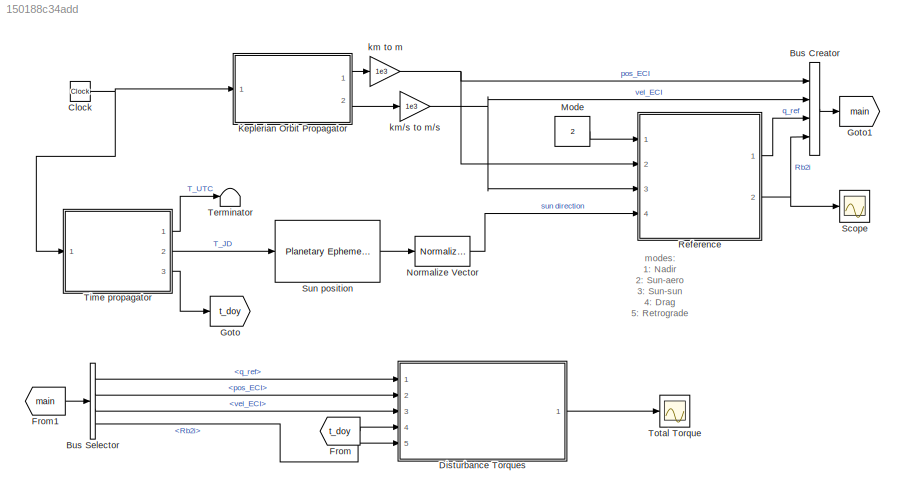
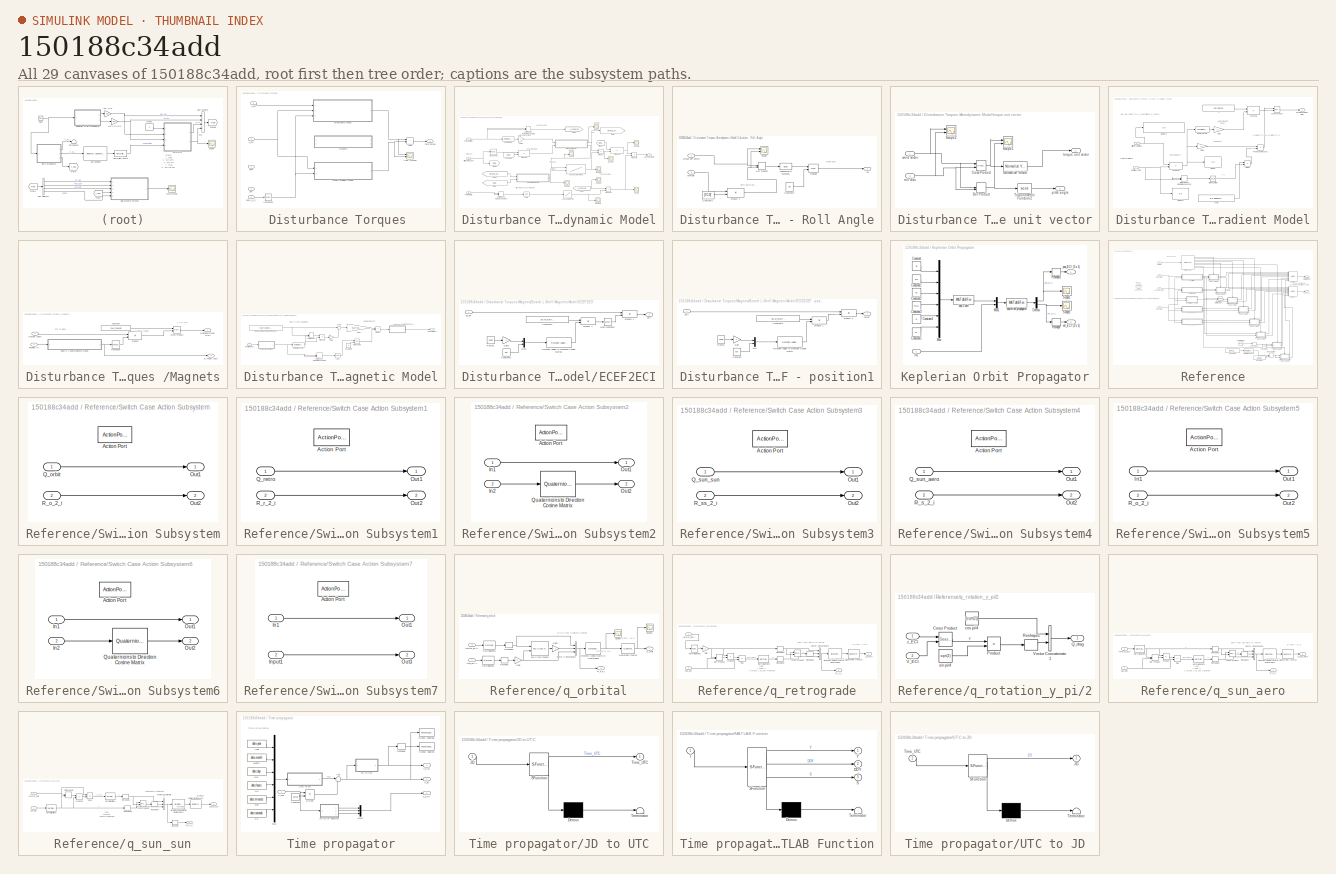
[diagram: thumbnail index - all 29 canvases of the model, root first then tree order]
MODEL slx_150188c34add
KIND model
CONFIG AbsTol = auto
CONFIG EnableMultiTasking = off
CONFIG FixedStep = TimeStep
CONFIG MaxStep = auto
CONFIG MinStep = auto
CONFIG RelTol = 1e-3
CONFIG SampleTimeConstraint = Unconstrained
CONFIG Solver = FixedStepAuto
CONFIG SolverName = FixedStepAuto
CONFIG StartTime = 0.0
CONFIG StopTime = t_sim
BLOCK [BusCreator] Bus Creator
  DisplayOption = bar
  InheritFromInputs = on
  Inputs = 4
  Ports = [4, 1]
BLOCK [BusSelector] Bus Selector
  OutputSignals = q_ref,pos_ECI,vel_ECI,Rb2i
  Ports = [1, 4]
BLOCK [Clock] Clock
BLOCK [SubSystem] Disturbance Torques 
  Ports = [5, 1]
  RequestExecContextInheritance = off
BLOCK [Scope] Disturbance Torques /2 dist torques
  Floating = off
  NumInputPorts = 2
  Ports = [2]
  ScopeSpecificationString = Simulink.scopes.TimeScopeBlockCfg('CurrentConfiguration', extmgr.ConfigurationSet(extmgr.Configuration('Core','General UI',true),extmgr.Configuration('Core','Source UI',true),extmgr.Configuration('Sources','WiredSimulink',true,'DataLoggingVariableName','ScopeData1'),extmgr.Configuration('Visuals','Time Domain',true,'SerializedDisplays',{struct('MinYLimReal','-0.00017','MaxYLimReal','0.00017','YLab...<+2391ch>
BLOCK [Sum] Disturbance Torques /Add1
  IconShape = rectangular
  Ports = [2, 1]
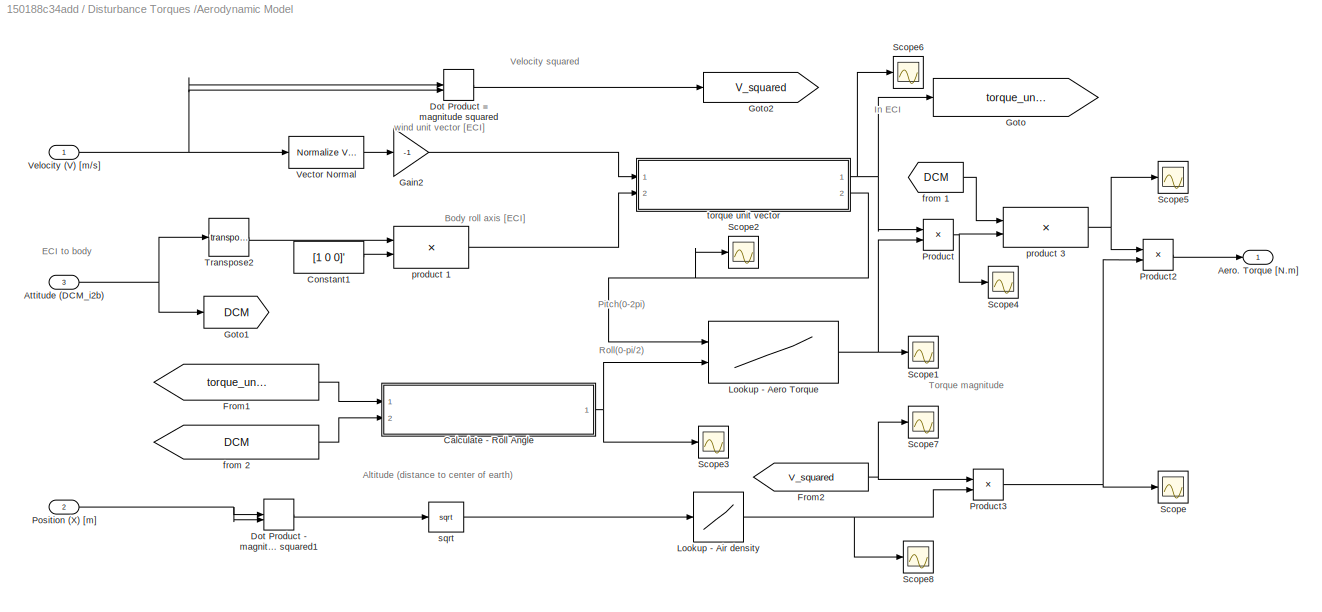
BLOCK [SubSystem] Disturbance Torques /Aerodynamic Model
  Ports = [3, 1]
  RequestExecContextInheritance = off
BLOCK [Outport] Disturbance Torques /Aerodynamic Model/Aero. Torque [N.m]
BLOCK [Inport] Disturbance Torques /Aerodynamic Model/Attitude (DCM_i2b)
  Port = 3
BLOCK [SubSystem] Disturbance Torques /Aerodynamic Model/Calculate - Roll Angle
  Ports = [2, 1]
  RequestExecContextInheritance = off
BLOCK [Constant] Disturbance Torques /Aerodynamic Model/Calculate - Roll Angle/Constant2
  Value = [0 1 0]'
BLOCK [Constant] Disturbance Torques /Aerodynamic Model/Calculate - Roll Angle/Constant3
  Value = pi/2
BLOCK [DotProduct] Disturbance Torques /Aerodynamic Model/Calculate - Roll Angle/Dot Product
  OutDataTypeStr = Inherit: Inherit via internal rule
BLOCK [Math] Disturbance Torques /Aerodynamic Model/Calculate - Roll Angle/Modulus
  Operator = mod
  Ports = [2, 1]
BLOCK [Scope] Disturbance Torques /Aerodynamic Model/Calculate - Roll Angle/Scope
  Floating = off
  NumInputPorts = 2
  Ports = [2]
  ScopeSpecificationString = Simulink.scopes.TimeScopeBlockCfg('CurrentConfiguration', extmgr.ConfigurationSet(extmgr.Configuration('Core','General UI',true),extmgr.Configuration('Core','Source UI',true),extmgr.Configuration('Sources','WiredSimulink',true,'DataLoggingVariableName','ScopeData1'),extmgr.Configuration('Visuals','Time Domain',true,'SerializedDisplays',{struct('MinYLimReal','-1.25','MaxYLimReal','1.25','YLabelReal...<+2164ch>
BLOCK [Trigonometry] Disturbance Torques /Aerodynamic Model/Calculate - Roll Angle/Trigonometric Function1
  Operator = acos
  Ports = [1, 1]
BLOCK [Inport] Disturbance Torques /Aerodynamic Model/Calculate - Roll Angle/attitude
  Port = 2
BLOCK [Product] Disturbance Torques /Aerodynamic Model/Calculate - Roll Angle/product 2
  Multiplication = Matrix(*)
  Ports = [2, 1]
  RndMeth = Zero
BLOCK [Outport] Disturbance Torques /Aerodynamic Model/Calculate - Roll Angle/roll
BLOCK [Inport] Disturbance Torques /Aerodynamic Model/Calculate - Roll Angle/torque unit vector
BLOCK [Constant] Disturbance Torques /Aerodynamic Model/Constant1
  Value = [1 0 0]'
BLOCK [DotProduct] Disturbance Torques /Aerodynamic Model/Dot Product - magnitude squared1
  OutDataTypeStr = Inherit: Inherit via internal rule
BLOCK [DotProduct] Disturbance Torques /Aerodynamic Model/Dot Product = magnitude squared
  OutDataTypeStr = Inherit: Inherit via internal rule
BLOCK [From] Disturbance Torques /Aerodynamic Model/From1
  CloseFcn = tagdialog Close
  GotoTag = torque_unit_vector
BLOCK [From] Disturbance Torques /Aerodynamic Model/From2
  CloseFcn = tagdialog Close
  GotoTag = V_squared
BLOCK [Gain] Disturbance Torques /Aerodynamic Model/Gain2
  Gain = -1
BLOCK [Goto] Disturbance Torques /Aerodynamic Model/Goto
  GotoTag = torque_unit_vector
BLOCK [Goto] Disturbance Torques /Aerodynamic Model/Goto1
  GotoTag = DCM
BLOCK [Goto] Disturbance Torques /Aerodynamic Model/Goto2
  GotoTag = V_squared
BLOCK [Lookup2D] Disturbance Torques /Aerodynamic Model/Lookup - Aero Torque
  ColumnIndex = IonSataero.roll
  InputSameDT = off
  RowIndex = IonSataero.pitch
  SaturateOnIntegerOverflow = off
  Table = IonSataero.T
BLOCK [Lookup] Disturbance Torques /Aerodynamic Model/Lookup - Air density
  InputValues = IonSataero.alt_range*1000 + 6378100
  SaturateOnIntegerOverflow = off
  Table = IonSataero.av_density_vs_alt
BLOCK [Inport] Disturbance Torques /Aerodynamic Model/Position (X) [m]
  Port = 2
BLOCK [Product] Disturbance Torques /Aerodynamic Model/Product
  Ports = [2, 1]
  RndMeth = Zero
BLOCK [Product] Disturbance Torques /Aerodynamic Model/Product2
  Ports = [2, 1]
  RndMeth = Zero
BLOCK [Product] Disturbance Torques /Aerodynamic Model/Product3
  Ports = [2, 1]
  RndMeth = Zero
BLOCK [Scope] Disturbance Torques /Aerodynamic Model/Scope
  Floating = off
  NumInputPorts = 1
  Ports = [1]
  ScopeSpecificationString = Simulink.scopes.TimeScopeBlockCfg('CurrentConfiguration', extmgr.ConfigurationSet(extmgr.Configuration('Core','General UI',true),extmgr.Configuration('Core','Source UI',true),extmgr.Configuration('Sources','WiredSimulink',true,'DataLoggingVariableName','ScopeData1'),extmgr.Configuration('Visuals','Time Domain',true,'SerializedDisplays',{struct('MinYLimReal','0.00101','MaxYLimReal','0.00156','YLabe...<+1394ch>
BLOCK [Scope] Disturbance Torques /Aerodynamic Model/Scope1
  Floating = off
  NumInputPorts = 1
  Ports = [1]
  ScopeSpecificationString = Simulink.scopes.TimeScopeBlockCfg('CurrentConfiguration', extmgr.ConfigurationSet(extmgr.Configuration('Core','General UI',true),extmgr.Configuration('Core','Source UI',true),extmgr.Configuration('Sources','WiredSimulink',true,'DataLoggingVariableName','ScopeData2'),extmgr.Configuration('Visuals','Time Domain',true,'SerializedDisplays',{struct('MinYLimReal','0.07061','MaxYLimReal','0.09252','YLabe...<+1406ch>
BLOCK [Scope] Disturbance Torques /Aerodynamic Model/Scope2
  Floating = off
  NumInputPorts = 1
  Ports = [1]
  ScopeSpecificationString = Simulink.scopes.TimeScopeBlockCfg('CurrentConfiguration', extmgr.ConfigurationSet(extmgr.Configuration('Core','General UI',true),extmgr.Configuration('Core','Source UI',true),extmgr.Configuration('Sources','WiredSimulink',true,'DataLoggingVariableName','ScopeData3'),extmgr.Configuration('Visuals','Time Domain',true,'SerializedDisplays',{struct('MinYLimReal','3.1415924897','MaxYLimReal','3.14159249...<+1519ch>
BLOCK [Scope] Disturbance Torques /Aerodynamic Model/Scope3
  Floating = off
  NumInputPorts = 1
  Ports = [1]
  ScopeSpecificationString = Simulink.scopes.TimeScopeBlockCfg('CurrentConfiguration', extmgr.ConfigurationSet(extmgr.Configuration('Core','General UI',true),extmgr.Configuration('Core','Source UI',true),extmgr.Configuration('Sources','WiredSimulink',true,'DataLoggingVariableName','ScopeData4'),extmgr.Configuration('Visuals','Time Domain',true,'SerializedDisplays',{struct('MinYLimReal','-0.1961','MaxYLimReal','1.76681','YLabe...<+1408ch>
BLOCK [Scope] Disturbance Torques /Aerodynamic Model/Scope4
  Floating = off
  NumInputPorts = 1
  Ports = [1]
  ScopeSpecificationString = Simulink.scopes.TimeScopeBlockCfg('CurrentConfiguration', extmgr.ConfigurationSet(extmgr.Configuration('Core','General UI',true),extmgr.Configuration('Core','Source UI',true),extmgr.Configuration('Sources','WiredSimulink',true,'DataLoggingVariableName','ScopeData3'),extmgr.Configuration('Visuals','Time Domain',true,'SerializedDisplays',{struct('MinYLimReal','-0.1129','MaxYLimReal','0.11289','YLabe...<+1417ch>
BLOCK [Scope] Disturbance Torques /Aerodynamic Model/Scope5
  Floating = off
  NumInputPorts = 1
  Ports = [1]
  ScopeSpecificationString = Simulink.scopes.TimeScopeBlockCfg('CurrentConfiguration', extmgr.ConfigurationSet(extmgr.Configuration('Core','General UI',true),extmgr.Configuration('Core','Source UI',true),extmgr.Configuration('Sources','WiredSimulink',true,'DataLoggingVariableName','ScopeData4'),extmgr.Configuration('Visuals','Time Domain',true,'SerializedDisplays',{struct('MinYLimReal','-0.11249','MaxYLimReal','0.11251','YLab...<+1427ch>
BLOCK [Scope] Disturbance Torques /Aerodynamic Model/Scope6
  Floating = off
  NumInputPorts = 1
  Ports = [1]
  ScopeSpecificationString = Simulink.scopes.TimeScopeBlockCfg('CurrentConfiguration', extmgr.ConfigurationSet(extmgr.Configuration('Core','General UI',true),extmgr.Configuration('Core','Source UI',true),extmgr.Configuration('Sources','WiredSimulink',true,'DataLoggingVariableName','ScopeData5'),extmgr.Configuration('Visuals','Time Domain',true,'SerializedDisplays',{struct('MinYLimReal','-1.25','MaxYLimReal','1.25','YLabelReal...<+1513ch>
BLOCK [Scope] Disturbance Torques /Aerodynamic Model/Scope7
  Floating = off
  NumInputPorts = 1
  Ports = [1]
  ScopeSpecificationString = Simulink.scopes.TimeScopeBlockCfg('CurrentConfiguration', extmgr.ConfigurationSet(extmgr.Configuration('Core','General UI',true),extmgr.Configuration('Core','Source UI',true),extmgr.Configuration('Sources','WiredSimulink',true,'DataLoggingVariableName','ScopeData1'),extmgr.Configuration('Visuals','Time Domain',true,'SerializedDisplays',{struct('MinYLimReal','59538601.83529','MaxYLimReal','59837040...<+1496ch>
BLOCK [Scope] Disturbance Torques /Aerodynamic Model/Scope8
  Floating = off
  NumInputPorts = 1
  Ports = [1]
  ScopeSpecificationString = Simulink.scopes.TimeScopeBlockCfg('CurrentConfiguration', extmgr.ConfigurationSet(extmgr.Configuration('Core','General UI',true),extmgr.Configuration('Core','Source UI',true),extmgr.Configuration('Sources','WiredSimulink',true,'DataLoggingVariableName','ScopeData2'),extmgr.Configuration('Visuals','Time Domain',true),extmgr.Configuration('Tools','Plot Navigation',true),extmgr.Configuration('Tools',...<+40ch>
BLOCK [Math] Disturbance Torques /Aerodynamic Model/Transpose2
  Operator = transpose
  Ports = [1, 1]
BLOCK [Reference] Disturbance Torques /Aerodynamic Model/Vector Normal  REF=vrlib/Utilities/Normalize Vector
  Ports = [1, 1]
  SourceBlock = vrlib/Utilities/Normalize Vector
  SourceProductBaseCode = SL
  SourceType = Normalize Vector
BLOCK [Inport] Disturbance Torques /Aerodynamic Model/Velocity  (V) [m//s]
BLOCK [From] Disturbance Torques /Aerodynamic Model/from 1
  CloseFcn = tagdialog Close
  GotoTag = DCM
BLOCK [From] Disturbance Torques /Aerodynamic Model/from 2
  CloseFcn = tagdialog Close
  GotoTag = DCM
BLOCK [Product] Disturbance Torques /Aerodynamic Model/product 1
  Multiplication = Matrix(*)
  Ports = [2, 1]
  RndMeth = Zero
BLOCK [Product] Disturbance Torques /Aerodynamic Model/product 3
  Multiplication = Matrix(*)
  Ports = [2, 1]
  RndMeth = Zero
BLOCK [Math] Disturbance Torques /Aerodynamic Model/sqrt
  Operator = sqrt
  Ports = [1, 1]
BLOCK [SubSystem] Disturbance Torques /Aerodynamic Model/torque unit vector
  Ports = [2, 2]
  RequestExecContextInheritance = off
BLOCK [Reference] Disturbance Torques /Aerodynamic Model/torque unit vector/Cross Product  REF=vrlib/Utilities/Cross Product
  Ports = [2, 1]
  SourceBlock = vrlib/Utilities/Cross Product
  SourceProductBaseCode = SL
  SourceType = Cross Product
BLOCK [DotProduct] Disturbance Torques /Aerodynamic Model/torque unit vector/Dot Product
  OutDataTypeStr = Inherit: Inherit via internal rule
BLOCK [Reference] Disturbance Torques /Aerodynamic Model/torque unit vector/Normalize Vector  REF=vrlib/Utilities/Normalize Vector
  Ports = [1, 1]
  SourceBlock = vrlib/Utilities/Normalize Vector
  SourceProductBaseCode = SL
  SourceType = Normalize Vector
BLOCK [Scope] Disturbance Torques /Aerodynamic Model/torque unit vector/Scope1
  Floating = off
  NumInputPorts = 2
  Ports = [2]
  ScopeSpecificationString = Simulink.scopes.TimeScopeBlockCfg('CurrentConfiguration', extmgr.ConfigurationSet(extmgr.Configuration('Core','General UI',true),extmgr.Configuration('Core','Source UI',true),extmgr.Configuration('Sources','WiredSimulink',true,'DataLoggingVariableName','ScopeData7','DataLoggingSaveFormat','Array','DataLoggingLimitDataPoints',true,'DataLoggingDecimation','1'),extmgr.Configuration('Visuals','Time Do...<+2558ch>
BLOCK [Scope] Disturbance Torques /Aerodynamic Model/torque unit vector/Scope2
  Floating = off
  NumInputPorts = 2
  Ports = [2]
  ScopeSpecificationString = Simulink.scopes.TimeScopeBlockCfg('CurrentConfiguration', extmgr.ConfigurationSet(extmgr.Configuration('Core','General UI',true),extmgr.Configuration('Core','Source UI',true),extmgr.Configuration('Sources','WiredSimulink',true,'DataLoggingVariableName','ScopeData8'),extmgr.Configuration('Visuals','Time Domain',true,'SerializedDisplays',{struct('MinYLimReal','-1.24483','MaxYLimReal','1.24483','YLab...<+2096ch>
BLOCK [Trigonometry] Disturbance Torques /Aerodynamic Model/torque unit vector/Trigonometric Function2
  Operator = acos
  Ports = [1, 1]
BLOCK [Outport] Disturbance Torques /Aerodynamic Model/torque unit vector/pitch angle
  Port = 2
BLOCK [Inport] Disturbance Torques /Aerodynamic Model/torque unit vector/roll axis
  Port = 2
BLOCK [Outport] Disturbance Torques /Aerodynamic Model/torque unit vector/torque unit vector
BLOCK [Inport] Disturbance Torques /Aerodynamic Model/torque unit vector/wind vector
BLOCK [Inport] Disturbance Torques /DCM_b_2_i
  Port = 5
BLOCK [Inport] Disturbance Torques /DOY
  Port = 4
BLOCK [SubSystem] Disturbance Torques /Gravity Gradient Model
  Ports = [2, 1]
  RequestExecContextInheritance = off
BLOCK [Constant] Disturbance Torques /Gravity Gradient Model/3 * mu
  Value = 3*3.9860044188e14
BLOCK [Inport] Disturbance Torques /Gravity Gradient Model/Attitude (DCMi2b)
  Port = 2
BLOCK [Reference] Disturbance Torques /Gravity Gradient Model/Cross Product  REF=vrlib/Utilities/Cross Product
  Ports = [2, 1]
  SourceBlock = vrlib/Utilities/Cross Product
  SourceProductBaseCode = SL
  SourceType = Cross Product
BLOCK [Display] Disturbance Torques /Gravity Gradient Model/Display
  Decimation = 1
  Ports = [1]
BLOCK [Display] Disturbance Torques /Gravity Gradient Model/Display2
  Decimation = 1
  Ports = [1]
BLOCK [Display] Disturbance Torques /Gravity Gradient Model/Display3
  Decimation = 1
  Ports = [1]
BLOCK [Product] Disturbance Torques /Gravity Gradient Model/Divide
  Inputs = */
  Ports = [2, 1]
BLOCK [DotProduct] Disturbance Torques /Gravity Gradient Model/Dot Product = magnitude squared
  OutDataTypeStr = Inherit: Inherit via internal rule
BLOCK [Gain] Disturbance Torques /Gravity Gradient Model/Gain
  Gain = -1
BLOCK [Gain] Disturbance Torques /Gravity Gradient Model/Gain1
  Gain = -1
BLOCK [Outport] Disturbance Torques /Gravity Gradient Model/Gravity Gradient [N.m]
BLOCK [Constant] Disturbance Torques /Gravity Gradient Model/J
  Value = sat.inertia
BLOCK [Math] Disturbance Torques /Gravity Gradient Model/Math Function
  Operator = square
  Ports = [1, 1]
BLOCK [Inport] Disturbance Torques /Gravity Gradient Model/Position (X) [m] 
BLOCK [Product] Disturbance Torques /Gravity Gradient Model/Product (not cross)
  Ports = [2, 1]
  RndMeth = Zero
BLOCK [Reference] Disturbance Torques /Gravity Gradient Model/Vector Normal  REF=vrlib/Utilities/Normalize Vector
  Ports = [1, 1]
  SourceBlock = vrlib/Utilities/Normalize Vector
  SourceProductBaseCode = SL
  SourceType = Normalize Vector
BLOCK [Product] Disturbance Torques /Gravity Gradient Model/product 1
  Multiplication = Matrix(*)
  Ports = [2, 1]
  RndMeth = Zero
BLOCK [Product] Disturbance Torques /Gravity Gradient Model/product 2
  Multiplication = Matrix(*)
  Ports = [2, 1]
  RndMeth = Zero
BLOCK [SubSystem] Disturbance Torques /Magnets
  Commented = on
  Ports = [2, 2]
  RequestExecContextInheritance = off
BLOCK [Inport] Disturbance Torques /Magnets/Attitude (DCM)
  Port = 2
BLOCK [Outport] Disturbance Torques /Magnets/B (Tesla) [ECI]
  Port = 2
BLOCK [Reference] Disturbance Torques /Magnets/Cross Product  REF=vrlib/Utilities/Cross Product
  Ports = [2, 1]
  SourceBlock = vrlib/Utilities/Cross Product
  SourceProductBaseCode = SL
  SourceType = Cross Product
BLOCK [SubSystem] Disturbance Torques /Magnets/Eearth L-Shell Magnetic Model
  Ports = [1, 1]
  RequestExecContextInheritance = off
BLOCK [Outport] Disturbance Torques /Magnets/Eearth L-Shell Magnetic Model/B (Tesla) in ECI
BLOCK [Constant] Disturbance Torques /Magnets/Eearth L-Shell Magnetic Model/Constant3
  Value = 3
BLOCK [Product] Disturbance Torques /Magnets/Eearth L-Shell Magnetic Model/Divide1
  Inputs = */
  Ports = [2, 1]
BLOCK [DotProduct] Disturbance Torques /Magnets/Eearth L-Shell Magnetic Model/Dot Product
  OutDataTypeStr = Inherit: Inherit via internal rule
BLOCK [DotProduct] Disturbance Torques /Magnets/Eearth L-Shell Magnetic Model/Dot Product - magnitude squared
  OutDataTypeStr = Inherit: Inherit via internal rule
BLOCK [SubSystem] Disturbance Torques /Magnets/Eearth L-Shell Magnetic Model/ECEF2ECI
  Ports = [1, 1]
  RequestExecContextInheritance = off
BLOCK [Constant] Disturbance Torques /Magnets/Eearth L-Shell Magnetic Model/ECEF2ECI/Constant1
  Value = [0 0]
BLOCK [Constant] Disturbance Torques /Magnets/Eearth L-Shell Magnetic Model/ECEF2ECI/Constant3
  Value = SNAP_starting_ECI2ECEF_dcm
BLOCK [Inport] Disturbance Torques /Magnets/Eearth L-Shell Magnetic Model/ECEF2ECI/ECEF
BLOCK [Outport] Disturbance Torques /Magnets/Eearth L-Shell Magnetic Model/ECEF2ECI/ECI
BLOCK [Gain] Disturbance Torques /Magnets/Eearth L-Shell Magnetic Model/ECEF2ECI/Gain1
  Gain = -1
BLOCK [Math] Disturbance Torques /Magnets/Eearth L-Shell Magnetic Model/ECEF2ECI/Math Function2
  Operator = transpose
  Ports = [1, 1]
BLOCK [Mux] Disturbance Torques /Magnets/Eearth L-Shell Magnetic Model/ECEF2ECI/Mux1
  DisplayOption = bar
  Inputs = 2
  Ports = [2, 1]
BLOCK [Reference] Disturbance Torques /Magnets/Eearth L-Shell Magnetic Model/ECEF2ECI/Ramp2  REF=simulink/Sources/Ramp
  Ports = [0, 1]
  SourceBlock = simulink/Sources/Ramp
  SourceProductBaseCode = SL
  SourceType = Ramp
BLOCK [Reference] Disturbance Torques /Magnets/Eearth L-Shell Magnetic Model/ECEF2ECI/Rotation Angles to Direction Cosine Matrix1  REF=sharedtransform/Rotation Angles to
Direction Cosine Matrix
  AttributesFormatString = Rotation Order: %<rotationOrder>
  Ports = [1, 1]
  SourceBlock = sharedtransform/Rotation Angles to\nDirection Cosine Matrix
  SourceProductBaseCode = AE
  SourceType = Ang2DCM
BLOCK [Product] Disturbance Torques /Magnets/Eearth L-Shell Magnetic Model/ECEF2ECI/product 2
  Multiplication = Matrix(*)
  Ports = [2, 1]
  RndMeth = Zero
BLOCK [Product] Disturbance Torques /Magnets/Eearth L-Shell Magnetic Model/ECEF2ECI/product 4
  Multiplication = Matrix(*)
  Ports = [2, 1]
  RndMeth = Zero
BLOCK [SubSystem] Disturbance Torques /Magnets/Eearth L-Shell Magnetic Model/ECI2ECEF - position1
  Ports = [1, 1]
  RequestExecContextInheritance = off
BLOCK [Constant] Disturbance Torques /Magnets/Eearth L-Shell Magnetic Model/ECI2ECEF - position1/Constant
  Value = [0 0]
BLOCK [Constant] Disturbance Torques /Magnets/Eearth L-Shell Magnetic Model/ECI2ECEF - position1/Constant2
  Value = SNAP_starting_ECI2ECEF_dcm
BLOCK [Outport] Disturbance Torques /Magnets/Eearth L-Shell Magnetic Model/ECI2ECEF - position1/ECEF
BLOCK [Inport] Disturbance Torques /Magnets/Eearth L-Shell Magnetic Model/ECI2ECEF - position1/ECI
BLOCK [Gain] Disturbance Torques /Magnets/Eearth L-Shell Magnetic Model/ECI2ECEF - position1/Gain
  Gain = -1
BLOCK [Mux] Disturbance Torques /Magnets/Eearth L-Shell Magnetic Model/ECI2ECEF - position1/Mux
  DisplayOption = bar
  Inputs = 2
  Ports = [2, 1]
BLOCK [Reference] Disturbance Torques /Magnets/Eearth L-Shell Magnetic Model/ECI2ECEF - position1/Ramp1  REF=simulink/Sources/Ramp
  Ports = [0, 1]
  SourceBlock = simulink/Sources/Ramp
  SourceProductBaseCode = SL
  SourceType = Ramp
BLOCK [Reference] Disturbance Torques /Magnets/Eearth L-Shell Magnetic Model/ECI2ECEF - position1/Rotation Angles to Direction Cosine Matrix  REF=sharedtransform/Rotation Angles to
Direction Cosine Matrix
  AttributesFormatString = Rotation Order: %<rotationOrder>
  Ports = [1, 1]
  SourceBlock = sharedtransform/Rotation Angles to\nDirection Cosine Matrix
  SourceProductBaseCode = AE
  SourceType = Ang2DCM
BLOCK [Product] Disturbance Torques /Magnets/Eearth L-Shell Magnetic Model/ECI2ECEF - position1/product 1
  Multiplication = Matrix(*)
  Ports = [2, 1]
  RndMeth = Zero
BLOCK [Product] Disturbance Torques /Magnets/Eearth L-Shell Magnetic Model/ECI2ECEF - position1/product 2
  Multiplication = Matrix(*)
  Ports = [2, 1]
  RndMeth = Zero
BLOCK [Gain] Disturbance Torques /Magnets/Eearth L-Shell Magnetic Model/Gain
  Gain = 3
BLOCK [Gain] Disturbance Torques /Magnets/Eearth L-Shell Magnetic Model/Gain1
  Gain = SNAP_CONST_a3H0
BLOCK [Math] Disturbance Torques /Magnets/Eearth L-Shell Magnetic Model/Math Cubing
  Operator = pow
  Ports = [2, 1]
BLOCK [Reference] Disturbance Torques /Magnets/Eearth L-Shell Magnetic Model/Normalize Vector  REF=vrlib/Utilities/Normalize Vector
  Ports = [1, 1]
  SourceBlock = vrlib/Utilities/Normalize Vector
  SourceProductBaseCode = SL
  SourceType = Normalize Vector
BLOCK [Inport] Disturbance Torques /Magnets/Eearth L-Shell Magnetic Model/Position in ECI
BLOCK [Product] Disturbance Torques /Magnets/Eearth L-Shell Magnetic Model/Product1
  Ports = [2, 1]
  RndMeth = Zero
BLOCK [Sum] Disturbance Torques /Magnets/Eearth L-Shell Magnetic Model/Sum1
  Inputs = |-+
  Ports = [2, 1]
BLOCK [Constant] Disturbance Torques /Magnets/Eearth L-Shell Magnetic Model/m (unit vector, magnetic dipole in ECEF)
  Value = SNAP_CONST_earth_mag_dipole
BLOCK [Math] Disturbance Torques /Magnets/Eearth L-Shell Magnetic Model/sqrt
  Operator = sqrt
  Ports = [1, 1]
BLOCK [Outport] Disturbance Torques /Magnets/MagneticTorque (N.m)
BLOCK [Inport] Disturbance Torques /Magnets/Position (X)
BLOCK [Product] Disturbance Torques /Magnets/Product
  Multiplication = Matrix(*)
  Ports = [2, 1]
  RndMeth = Zero
BLOCK [Math] Disturbance Torques /Magnets/Transpose
  Operator = transpose
  Ports = [1, 1]
BLOCK [Constant] Disturbance Torques /Magnets/constant
  Value = SNAP_magnets
BLOCK [Inport] Disturbance Torques /Q_int 
BLOCK [Outport] Disturbance Torques /Total Torque 
BLOCK [Math] Disturbance Torques /Transpose1
  Operator = transpose
  Ports = [1, 1]
BLOCK [Inport] Disturbance Torques /V_ECI
  Port = 3
BLOCK [Inport] Disturbance Torques /X_ECI
  Port = 2
BLOCK [From] From
  GotoTag = t_doy
BLOCK [From] From1
  GotoTag = main
BLOCK [Goto] Goto
  GotoTag = t_doy
BLOCK [Goto] Goto1
  GotoTag = main
BLOCK [SubSystem] Keplerian Orbit Propagator
  Ports = [1, 2]
  RequestExecContextInheritance = off
BLOCK [Constant] Keplerian Orbit Propagator/Constant
  Value = alt
BLOCK [Constant] Keplerian Orbit Propagator/Constant1
  Value = ecc
BLOCK [Constant] Keplerian Orbit Propagator/Constant2
  Value = inc
BLOCK [Constant] Keplerian Orbit Propagator/Constant3
  Value = RAAN
BLOCK [Constant] Keplerian Orbit Propagator/Constant4
  Value = w
BLOCK [Constant] Keplerian Orbit Propagator/Constant5
  Value = nu
BLOCK [Demux] Keplerian Orbit Propagator/Demux
  Outputs = 2
  Ports = [1, 2]
BLOCK [Inport] Keplerian Orbit Propagator/In1
BLOCK [Mux] Keplerian Orbit Propagator/Mux
  DisplayOption = bar
  Inputs = 6
  Ports = [6, 1]
BLOCK [Mux] Keplerian Orbit Propagator/Mux1
  DisplayOption = bar
  Inputs = 2
  Ports = [2, 1]
BLOCK [Reshape] Keplerian Orbit Propagator/Reshape
  OutputDimensionality = Column vector (2-D)
  OutputDimensions = [1,3]
  Ports = [1, 1]
BLOCK [Reshape] Keplerian Orbit Propagator/Reshape1
  OutputDimensionality = Column vector (2-D)
  Ports = [1, 1]
BLOCK [Scope] Keplerian Orbit Propagator/Scope1
  Floating = off
  NumInputPorts = 1
  Ports = [1]
  ScopeSpecificationString = Simulink.scopes.TimeScopeBlockCfg('CurrentConfiguration', extmgr.ConfigurationSet(extmgr.Configuration('Core','General UI',true),extmgr.Configuration('Core','Source UI',true),extmgr.Configuration('Sources','WiredSimulink',true,'DataLoggingVariableName','ScopeData2'),extmgr.Configuration('Visuals','Time Domain',true,'SerializedDisplays',{struct('MinYLimReal','-8307.56531','MaxYLimReal','8318.65804'...<+1443ch>
BLOCK [Scope] Keplerian Orbit Propagator/Scope2
  Floating = off
  NumInputPorts = 1
  Ports = [1]
  ScopeSpecificationString = Simulink.scopes.TimeScopeBlockCfg('CurrentConfiguration', extmgr.ConfigurationSet(extmgr.Configuration('Core','General UI',true),extmgr.Configuration('Core','Source UI',true),extmgr.Configuration('Sources','WiredSimulink',true,'DataLoggingVariableName','ScopeData3'),extmgr.Configuration('Visuals','Time Domain',true,'SerializedDisplays',{struct('MinYLimReal','-9.62155','MaxYLimReal','9.61306','YLab...<+1446ch>
BLOCK [MATLABFcn] Keplerian Orbit Propagator/kep 2 cart
  MATLABFcn = Kepler2Carts
  Ports = [1, 1]
BLOCK [MATLABFcn] Keplerian Orbit Propagator/keplerian propagator
  MATLABFcn = kep_propagator
  Ports = [1, 1]
BLOCK [Outport] Keplerian Orbit Propagator/pos_ECI (3 x 1)
BLOCK [Outport] Keplerian Orbit Propagator/vel_ECI (3 x 1)
  Port = 2
BLOCK [Constant] Mode
  OutDataTypeStr = int8
  Value = 2
BLOCK [Reference] Normalize Vector  REF=vrlib/Utilities/Normalize Vector
  Ports = [1, 1]
  SourceBlock = vrlib/Utilities/Normalize Vector
  SourceProductBaseCode = SL
  SourceType = Normalize Vector
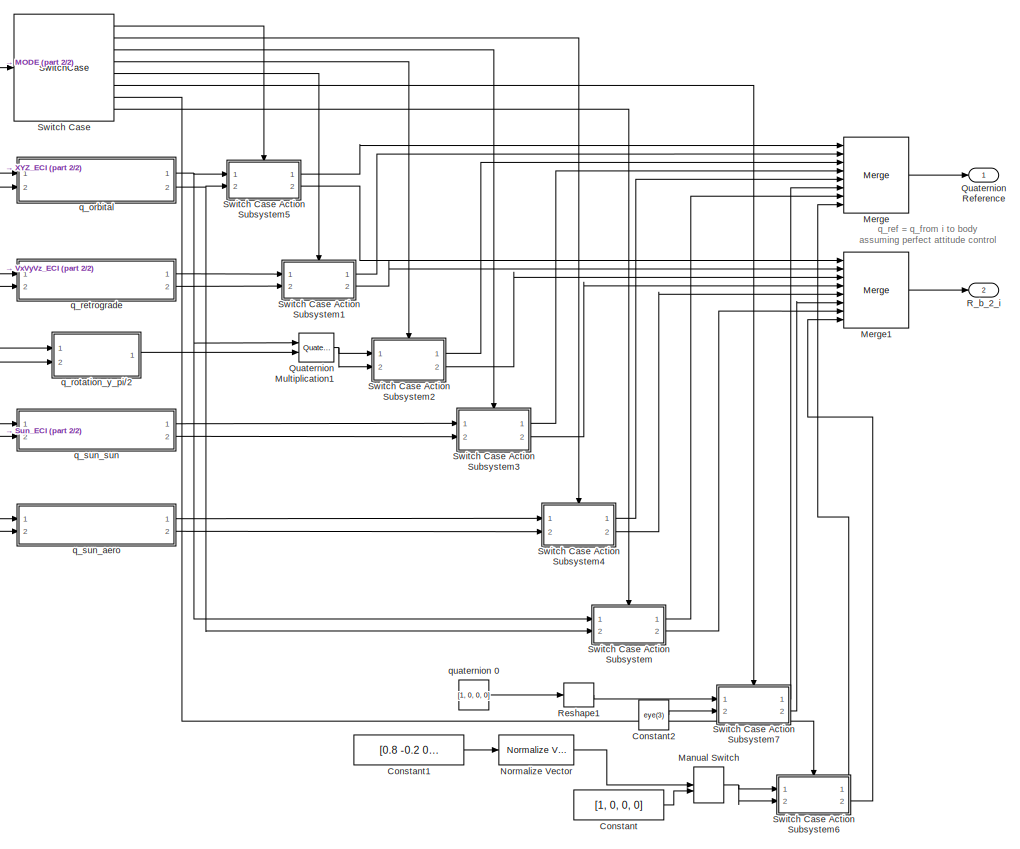
[diagram: Reference - part 1/2, center side, full height]
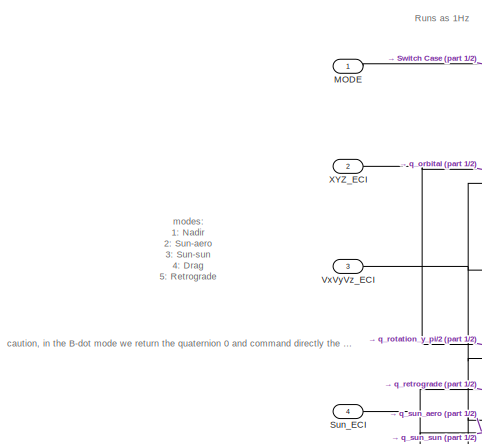
[diagram: Reference - part 2/2, top left region]
BLOCK [SubSystem] Reference
  Ports = [4, 2]
  RequestExecContextInheritance = off
  SystemSampleTime = 1
  TreatAsAtomicUnit = on
BLOCK [Constant] Reference/Constant
  Value = [1, 0, 0, 0]
BLOCK [Constant] Reference/Constant1
  Value = [0.8 -0.2 0.1 0.5]'
BLOCK [Constant] Reference/Constant2
  Value = eye(3)
BLOCK [Inport] Reference/MODE
  OutDataTypeStr = int8
  OutMax = 100
  OutMin = 1
BLOCK [ManualSwitch] Reference/Manual Switch
BLOCK [Merge] Reference/Merge
  Inputs = 8
  Ports = [8, 1]
BLOCK [Merge] Reference/Merge1
  Inputs = 8
  Ports = [8, 1]
BLOCK [Reference] Reference/Normalize Vector  REF=vrlib/Utilities/Normalize Vector
  Ports = [1, 1]
  SourceBlock = vrlib/Utilities/Normalize Vector
  SourceProductBaseCode = SL
  SourceType = Normalize Vector
BLOCK [Reference] Reference/Quaternion Multiplication1  REF=aerolibutil/Quaternion
Multiplication
  Ports = [2, 1]
  SourceBlock = aerolibutil/Quaternion\nMultiplication
  SourceProductBaseCode = AE
  SourceType = Quaternion Multiplication
BLOCK [Outport] Reference/Quaternion Reference
  VectorParamsAs1DForOutWhenUnconnected = off
BLOCK [Outport] Reference/R_b_2_i
  Port = 2
BLOCK [Reshape] Reference/Reshape1
  OutputDimensionality = Column vector (2-D)
  Ports = [1, 1]
BLOCK [Inport] Reference/Sun_ECI
  Port = 4
BLOCK [SwitchCase] Reference/Switch Case
  CaseConditions = {1, 2, 3, 4, 5, 6, 7}
  Ports = [1, 8]
BLOCK [SubSystem] Reference/Switch Case Action Subsystem
  Ports = [2, 2, 0, 0, 0, 0, 0, 1]
  RequestExecContextInheritance = off
  TreatAsAtomicUnit = on
BLOCK [ActionPort] Reference/Switch Case Action Subsystem/Action Port
BLOCK [Outport] Reference/Switch Case Action Subsystem/Out1
  VectorParamsAs1DForOutWhenUnconnected = off
BLOCK [Outport] Reference/Switch Case Action Subsystem/Out2
  Port = 2
  VectorParamsAs1DForOutWhenUnconnected = off
BLOCK [Inport] Reference/Switch Case Action Subsystem/Q_orbit
BLOCK [Inport] Reference/Switch Case Action Subsystem/R_o_2_i
  Port = 2
BLOCK [SubSystem] Reference/Switch Case Action Subsystem1
  Ports = [2, 2, 0, 0, 0, 0, 0, 1]
  RequestExecContextInheritance = off
  TreatAsAtomicUnit = on
BLOCK [ActionPort] Reference/Switch Case Action Subsystem1/Action Port
BLOCK [Outport] Reference/Switch Case Action Subsystem1/Out1
  VectorParamsAs1DForOutWhenUnconnected = off
BLOCK [Outport] Reference/Switch Case Action Subsystem1/Out2
  Port = 2
  VectorParamsAs1DForOutWhenUnconnected = off
BLOCK [Inport] Reference/Switch Case Action Subsystem1/Q_retro
BLOCK [Inport] Reference/Switch Case Action Subsystem1/R_r_2_i
  Port = 2
BLOCK [SubSystem] Reference/Switch Case Action Subsystem2
  Ports = [2, 2, 0, 0, 0, 0, 0, 1]
  RequestExecContextInheritance = off
  TreatAsAtomicUnit = on
BLOCK [ActionPort] Reference/Switch Case Action Subsystem2/Action Port
BLOCK [Inport] Reference/Switch Case Action Subsystem2/In1
BLOCK [Inport] Reference/Switch Case Action Subsystem2/In2
  Port = 2
BLOCK [Outport] Reference/Switch Case Action Subsystem2/Out1
  VectorParamsAs1DForOutWhenUnconnected = off
BLOCK [Outport] Reference/Switch Case Action Subsystem2/Out2
  Port = 2
  VectorParamsAs1DForOutWhenUnconnected = off
BLOCK [Reference] Reference/Switch Case Action Subsystem2/Quaternions to Direction Cosine Matrix  REF=sharedtransform/Quaternions to 
Direction Cosine Matrix
  Ports = [1, 1]
  SourceBlock = sharedtransform/Quaternions to \nDirection Cosine Matrix
  SourceProductBaseCode = AE,PW,MT,UV,VE,VP
  SourceType = Quaternion2DCM
BLOCK [SubSystem] Reference/Switch Case Action Subsystem3
  Ports = [2, 2, 0, 0, 0, 0, 0, 1]
  RequestExecContextInheritance = off
  TreatAsAtomicUnit = on
BLOCK [ActionPort] Reference/Switch Case Action Subsystem3/Action Port
BLOCK [Outport] Reference/Switch Case Action Subsystem3/Out1
  VectorParamsAs1DForOutWhenUnconnected = off
BLOCK [Outport] Reference/Switch Case Action Subsystem3/Out2
  Port = 2
  VectorParamsAs1DForOutWhenUnconnected = off
BLOCK [Inport] Reference/Switch Case Action Subsystem3/Q_sun_sun
BLOCK [Inport] Reference/Switch Case Action Subsystem3/R_ss_2_i
  Port = 2
BLOCK [SubSystem] Reference/Switch Case Action Subsystem4
  Ports = [2, 2, 0, 0, 0, 0, 0, 1]
  RequestExecContextInheritance = off
  TreatAsAtomicUnit = on
BLOCK [ActionPort] Reference/Switch Case Action Subsystem4/Action Port
BLOCK [Outport] Reference/Switch Case Action Subsystem4/Out1
  VectorParamsAs1DForOutWhenUnconnected = off
BLOCK [Outport] Reference/Switch Case Action Subsystem4/Out2
  Port = 2
  VectorParamsAs1DForOutWhenUnconnected = off
BLOCK [Inport] Reference/Switch Case Action Subsystem4/Q_sun_aero
BLOCK [Inport] Reference/Switch Case Action Subsystem4/R_s_2_i
  Port = 2
BLOCK [SubSystem] Reference/Switch Case Action Subsystem5
  Ports = [2, 2, 0, 0, 0, 0, 0, 1]
  RequestExecContextInheritance = off
  TreatAsAtomicUnit = on
BLOCK [ActionPort] Reference/Switch Case Action Subsystem5/Action Port
BLOCK [Inport] Reference/Switch Case Action Subsystem5/In1
BLOCK [Outport] Reference/Switch Case Action Subsystem5/Out1
  VectorParamsAs1DForOutWhenUnconnected = off
BLOCK [Outport] Reference/Switch Case Action Subsystem5/Out2
  Port = 2
  VectorParamsAs1DForOutWhenUnconnected = off
BLOCK [Inport] Reference/Switch Case Action Subsystem5/R_o_2_i
  Port = 2
BLOCK [SubSystem] Reference/Switch Case Action Subsystem6
  Ports = [2, 2, 0, 0, 0, 0, 0, 1]
  RequestExecContextInheritance = off
  TreatAsAtomicUnit = on
BLOCK [ActionPort] Reference/Switch Case Action Subsystem6/Action Port
BLOCK [Inport] Reference/Switch Case Action Subsystem6/In1
BLOCK [Inport] Reference/Switch Case Action Subsystem6/In2
  Port = 2
BLOCK [Outport] Reference/Switch Case Action Subsystem6/Out1
  VectorParamsAs1DForOutWhenUnconnected = off
BLOCK [Outport] Reference/Switch Case Action Subsystem6/Out2
  Port = 2
  VectorParamsAs1DForOutWhenUnconnected = off
BLOCK [Reference] Reference/Switch Case Action Subsystem6/Quaternions to Direction Cosine Matrix  REF=sharedtransform/Quaternions to 
Direction Cosine Matrix
  Ports = [1, 1]
  SourceBlock = sharedtransform/Quaternions to \nDirection Cosine Matrix
  SourceProductBaseCode = AE,PW,MT,UV,VE,VP
  SourceType = Quaternion2DCM
BLOCK [SubSystem] Reference/Switch Case Action Subsystem7
  Ports = [2, 2, 0, 0, 0, 0, 0, 1]
  RequestExecContextInheritance = off
  TreatAsAtomicUnit = on
BLOCK [ActionPort] Reference/Switch Case Action Subsystem7/Action Port
BLOCK [Inport] Reference/Switch Case Action Subsystem7/In1
BLOCK [Inport] Reference/Switch Case Action Subsystem7/Input1
  Port = 2
BLOCK [Outport] Reference/Switch Case Action Subsystem7/Out1
  VectorParamsAs1DForOutWhenUnconnected = off
BLOCK [Outport] Reference/Switch Case Action Subsystem7/Out3
  Port = 2
  VectorParamsAs1DForOutWhenUnconnected = off
BLOCK [Inport] Reference/VxVyVz_ECI
  Port = 3
BLOCK [Inport] Reference/XYZ_ECI
  Port = 2
BLOCK [SubSystem] Reference/q_orbital
  Ports = [2, 2]
  RequestExecContextInheritance = off
BLOCK [Reference] Reference/q_orbital/3x3 Cross Product  REF=sharedutil/3x3 Cross Product
  Ports = [2, 1]
  SourceBlock = sharedutil/3x3 Cross Product
  SourceProductBaseCode = AE,PW,MT,UV,VE,VP
  SourceType = CrossProduct
BLOCK [Inport] Reference/q_orbital/<VxVyVz_ECI>
  Port = 2
BLOCK [Inport] Reference/q_orbital/<XYZ_ECI>
BLOCK [Reference] Reference/q_orbital/Direction Cosine Matrix to Quaternions  REF=sharedtransform/Direction Cosine Matrix 
to Quaternions
  Ports = [1, 1]
  SourceBlock = sharedtransform/Direction Cosine Matrix \nto Quaternions
  SourceProductBaseCode = AE,PW,MT,UV,VE,VP
  SourceType = DCM2Quaternion
BLOCK [Gain] Reference/q_orbital/Gain
BLOCK [Gain] Reference/q_orbital/Gain1
  Gain = -1
BLOCK [Reference] Reference/q_orbital/Normalization  REF=dspmathops/Normalization
  Ports = [1, 1]
  SourceBlock = dspmathops/Normalization
  SourceProductBaseCode = DS
  SourceType = Normalization
BLOCK [Reference] Reference/q_orbital/Normalization1  REF=dspmathops/Normalization
  Ports = [1, 1]
  SourceBlock = dspmathops/Normalization
  SourceProductBaseCode = DS
  SourceType = Normalization
BLOCK [Outport] Reference/q_orbital/Q_orbit
  VectorParamsAs1DForOutWhenUnconnected = off
BLOCK [Reference] Reference/q_orbital/Quaternion Inverse  REF=aerolibutil/Quaternion
Inverse
  Ports = [1, 1]
  SourceBlock = aerolibutil/Quaternion\nInverse
  SourceProductBaseCode = AE
  SourceType = Quaternion Inverse
BLOCK [Outport] Reference/q_orbital/R_o_2_i
  Port = 2
  VectorParamsAs1DForOutWhenUnconnected = off
BLOCK [Reshape] Reference/q_orbital/Reshape
  OutputDimensionality = Column vector (2-D)
  Ports = [1, 1]
BLOCK [Reshape] Reference/q_orbital/Reshape1
  OutputDimensionality = Column vector (2-D)
  Ports = [1, 1]
BLOCK [Scope] Reference/q_orbital/Scope
  Floating = off
  NumInputPorts = 1
  Ports = [1]
  ScopeSpecificationString = Simulink.scopes.TimeScopeBlockCfg('CurrentConfiguration', extmgr.ConfigurationSet(extmgr.Configuration('Core','General UI',true),extmgr.Configuration('Core','Source UI',true),extmgr.Configuration('Sources','WiredSimulink',true,'DataLoggingVariableName','ScopeData1'),extmgr.Configuration('Visuals','Time Domain',true,'SerializedDisplays',{struct('MinYLimReal','-0.80746','MaxYLimReal','0.95119','YLab...<+1650ch>
BLOCK [Scope] Reference/q_orbital/Scope1
  Floating = off
  NumInputPorts = 1
  Ports = [1]
  ScopeSpecificationString = Simulink.scopes.TimeScopeBlockCfg('CurrentConfiguration', extmgr.ConfigurationSet(extmgr.Configuration('Core','General UI',true),extmgr.Configuration('Core','Source UI',true),extmgr.Configuration('Sources','WiredSimulink',true,'DataLoggingVariableName','ScopeData2'),extmgr.Configuration('Visuals','Time Domain',true,'SerializedDisplays',{struct('MinYLimReal','-0.95121','MaxYLimReal','0.8075','YLabe...<+1568ch>
BLOCK [Concatenate] Reference/q_orbital/Vector Concatenate
  ConcatenateDimension = 2
  Mode = Multidimensional array
  NumInputs = 3
  Ports = [3, 1]
BLOCK [SubSystem] Reference/q_retrograde
  Ports = [2, 2]
  RequestExecContextInheritance = off
BLOCK [Inport] Reference/q_retrograde/<VxVyVz_ECI>
BLOCK [Reference] Reference/q_retrograde/Cross Product  REF=vrlib/Utilities/Cross Product
  Ports = [2, 1]
  SourceBlock = vrlib/Utilities/Cross Product
  SourceProductBaseCode = SL
  SourceType = Cross Product
BLOCK [Reference] Reference/q_retrograde/Direction Cosine Matrix to Quaternions  REF=sharedtransform/Direction Cosine Matrix 
to Quaternions
  Ports = [1, 1]
  SourceBlock = sharedtransform/Direction Cosine Matrix \nto Quaternions
  SourceProductBaseCode = AE,PW,MT,UV,VE,VP
  SourceType = DCM2Quaternion
BLOCK [DotProduct] Reference/q_retrograde/Dot Product
  OutDataTypeStr = Inherit: Inherit via internal rule
BLOCK [Gain] Reference/q_retrograde/Gain
  Gain = -1
BLOCK [Reference] Reference/q_retrograde/Normalization1  REF=dspmathops/Normalization
  Ports = [1, 1]
  SourceBlock = dspmathops/Normalization
  SourceProductBaseCode = DS
  SourceType = Normalization
BLOCK [Reference] Reference/q_retrograde/Normalization2  REF=dspmathops/Normalization
  Ports = [1, 1]
  SourceBlock = dspmathops/Normalization
  SourceProductBaseCode = DS
  SourceType = Normalization
BLOCK [Sum] Reference/q_retrograde/Plus
  IconShape = rectangular
  Inputs = -+
  Ports = [2, 1]
BLOCK [Product] Reference/q_retrograde/Product
  Ports = [2, 1]
BLOCK [Outport] Reference/q_retrograde/Q_retro
  VectorParamsAs1DForOutWhenUnconnected = off
BLOCK [Reference] Reference/q_retrograde/Quaternion Inverse  REF=aerolibutil/Quaternion
Inverse
  Ports = [1, 1]
  SourceBlock = aerolibutil/Quaternion\nInverse
  SourceProductBaseCode = AE
  SourceType = Quaternion Inverse
BLOCK [Outport] Reference/q_retrograde/R_r_2_i
  Port = 2
  VectorParamsAs1DForOutWhenUnconnected = off
BLOCK [Reshape] Reference/q_retrograde/Reshape1
  OutputDimensionality = Column vector (2-D)
  Ports = [1, 1]
BLOCK [Reshape] Reference/q_retrograde/Reshape2
  OutputDimensionality = Column vector (2-D)
  Ports = [1, 1]
BLOCK [Reshape] Reference/q_retrograde/Reshape3
  OutputDimensionality = Column vector (2-D)
  Ports = [1, 1]
BLOCK [Inport] Reference/q_retrograde/Sun_ECI
  Port = 2
BLOCK [Concatenate] Reference/q_retrograde/Vector Concatenate
  ConcatenateDimension = 2
  Mode = Multidimensional array
  NumInputs = 3
  Ports = [3, 1]
BLOCK [SubSystem] Reference/q_rotation_y_pi//2
  Ports = [2, 1]
  RequestExecContextInheritance = off
BLOCK [Reference] Reference/q_rotation_y_pi//2/Cross Product  REF=vrlib/Utilities/Cross Product
  Ports = [2, 1]
  SourceBlock = vrlib/Utilities/Cross Product
  SourceProductBaseCode = SL
  SourceType = Cross Product
BLOCK [Product] Reference/q_rotation_y_pi//2/Product
  Ports = [2, 1]
BLOCK [Outport] Reference/q_rotation_y_pi//2/Q_drag
  VectorParamsAs1DForOutWhenUnconnected = off
BLOCK [Reshape] Reference/q_rotation_y_pi//2/Reshape1
  OutputDimensionality = Column vector (2-D)
  Ports = [1, 1]
BLOCK [Inport] Reference/q_rotation_y_pi//2/V_ECI
  Port = 2
BLOCK [Concatenate] Reference/q_rotation_y_pi//2/Vector Concatenate1
  Mode = Multidimensional array
  Ports = [2, 1]
BLOCK [Constant] Reference/q_rotation_y_pi//2/cos pi//4
  Value = [sqrt(2)]
BLOCK [Constant] Reference/q_rotation_y_pi//2/sin pi//4
  Value = sqrt(2)
BLOCK [Inport] Reference/q_rotation_y_pi//2/z_ECI
BLOCK [SubSystem] Reference/q_sun_aero
  Ports = [2, 2]
  RequestExecContextInheritance = off
BLOCK [Inport] Reference/q_sun_aero/<VxVyVz_ECI>
  Port = 2
BLOCK [Reference] Reference/q_sun_aero/Cross Product  REF=vrlib/Utilities/Cross Product
  Ports = [2, 1]
  SourceBlock = vrlib/Utilities/Cross Product
  SourceProductBaseCode = SL
  SourceType = Cross Product
BLOCK [Reference] Reference/q_sun_aero/Direction Cosine Matrix to Quaternions  REF=sharedtransform/Direction Cosine Matrix 
to Quaternions
  Ports = [1, 1]
  SourceBlock = sharedtransform/Direction Cosine Matrix \nto Quaternions
  SourceProductBaseCode = AE,PW,MT,UV,VE,VP
  SourceType = DCM2Quaternion
BLOCK [DotProduct] Reference/q_sun_aero/Dot Product
  OutDataTypeStr = Inherit: Inherit via internal rule
BLOCK [Reference] Reference/q_sun_aero/Normalization1  REF=dspmathops/Normalization
  Ports = [1, 1]
  SourceBlock = dspmathops/Normalization
  SourceProductBaseCode = DS
  SourceType = Normalization
BLOCK [Reference] Reference/q_sun_aero/Normalization2  REF=dspmathops/Normalization
  Ports = [1, 1]
  SourceBlock = dspmathops/Normalization
  SourceProductBaseCode = DS
  SourceType = Normalization
BLOCK [Sum] Reference/q_sun_aero/Plus
  IconShape = rectangular
  Inputs = -+
  Ports = [2, 1]
BLOCK [Product] Reference/q_sun_aero/Product
  Ports = [2, 1]
BLOCK [Outport] Reference/q_sun_aero/Q_sun_aero
  VectorParamsAs1DForOutWhenUnconnected = off
BLOCK [Reference] Reference/q_sun_aero/Quaternion Inverse  REF=aerolibutil/Quaternion
Inverse
  Ports = [1, 1]
  SourceBlock = aerolibutil/Quaternion\nInverse
  SourceProductBaseCode = AE
  SourceType = Quaternion Inverse
BLOCK [Outport] Reference/q_sun_aero/R_s_2_i
  Port = 2
  VectorParamsAs1DForOutWhenUnconnected = off
BLOCK [Reshape] Reference/q_sun_aero/Reshape1
  OutputDimensionality = Column vector (2-D)
  Ports = [1, 1]
BLOCK [Reshape] Reference/q_sun_aero/Reshape2
  OutputDimensionality = Column vector (2-D)
  Ports = [1, 1]
BLOCK [Reshape] Reference/q_sun_aero/Reshape3
  OutputDimensionality = Column vector (2-D)
  Ports = [1, 1]
BLOCK [Inport] Reference/q_sun_aero/Sun_ECI
BLOCK [Concatenate] Reference/q_sun_aero/Vector Concatenate
  ConcatenateDimension = 2
  Mode = Multidimensional array
  NumInputs = 3
  Ports = [3, 1]
BLOCK [SubSystem] Reference/q_sun_sun
  Ports = [2, 2]
  RequestExecContextInheritance = off
BLOCK [Inport] Reference/q_sun_sun/<VxVyVz_ECI>
BLOCK [Reference] Reference/q_sun_sun/Cross Product1  REF=vrlib/Utilities/Cross Product
  Ports = [2, 1]
  SourceBlock = vrlib/Utilities/Cross Product
  SourceProductBaseCode = SL
  SourceType = Cross Product
BLOCK [Reference] Reference/q_sun_sun/Direction Cosine Matrix to Quaternions1  REF=sharedtransform/Direction Cosine Matrix 
to Quaternions
  Ports = [1, 1]
  SourceBlock = sharedtransform/Direction Cosine Matrix \nto Quaternions
  SourceProductBaseCode = AE,PW,MT,UV,VE,VP
  SourceType = DCM2Quaternion
BLOCK [DotProduct] Reference/q_sun_sun/Dot Product1
  OutDataTypeStr = Inherit: Inherit via internal rule
BLOCK [Reference] Reference/q_sun_sun/Normalization3  REF=dspmathops/Normalization
  Ports = [1, 1]
  SourceBlock = dspmathops/Normalization
  SourceProductBaseCode = DS
  SourceType = Normalization
BLOCK [Reference] Reference/q_sun_sun/Normalization4  REF=dspmathops/Normalization
  Ports = [1, 1]
  SourceBlock = dspmathops/Normalization
  SourceProductBaseCode = DS
  SourceType = Normalization
BLOCK [Sum] Reference/q_sun_sun/Plus1
  IconShape = rectangular
  Inputs = -+
  Ports = [2, 1]
BLOCK [Product] Reference/q_sun_sun/Product1
  Ports = [2, 1]
BLOCK [Outport] Reference/q_sun_sun/Q_sun_sun
  VectorParamsAs1DForOutWhenUnconnected = off
BLOCK [Reference] Reference/q_sun_sun/Quaternion Inverse1  REF=aerolibutil/Quaternion
Inverse
  Ports = [1, 1]
  SourceBlock = aerolibutil/Quaternion\nInverse
  SourceProductBaseCode = AE
  SourceType = Quaternion Inverse
BLOCK [Outport] Reference/q_sun_sun/R_ss_2_i
  Port = 2
  VectorParamsAs1DForOutWhenUnconnected = off
BLOCK [Reshape] Reference/q_sun_sun/Reshape
  OutputDimensionality = Customize
  OutputDimensions = [3,3]
  Ports = [1, 1]
BLOCK [Reshape] Reference/q_sun_sun/Reshape4
  OutputDimensionality = Column vector (2-D)
  Ports = [1, 1]
BLOCK [Reshape] Reference/q_sun_sun/Reshape5
  OutputDimensionality = Column vector (2-D)
  Ports = [1, 1]
BLOCK [Reshape] Reference/q_sun_sun/Reshape6
  OutputDimensionality = Column vector (2-D)
  Ports = [1, 1]
BLOCK [Inport] Reference/q_sun_sun/Sun_ECI
  Port = 2
BLOCK [Concatenate] Reference/q_sun_sun/Vector Concatenate1
  ConcatenateDimension = 2
  Mode = Multidimensional array
  NumInputs = 3
  Ports = [3, 1]
BLOCK [Constant] Reference/quaternion 0
  Value = [1, 0, 0, 0]
BLOCK [Scope] Scope
  Floating = off
  NumInputPorts = 1
  Ports = [1]
  ScopeSpecificationString = Simulink.scopes.TimeScopeBlockCfg('CurrentConfiguration', extmgr.ConfigurationSet(extmgr.Configuration('Core','General UI',true),extmgr.Configuration('Core','Source UI',true),extmgr.Configuration('Sources','WiredSimulink',true,'DataLoggingVariableName','ScopeData1'),extmgr.Configuration('Visuals','Time Domain',true,'SerializedDisplays',{struct('MinYLimReal','-1.24483','MaxYLimReal','1.24483','YLab...<+1464ch>
BLOCK [Reference] Sun position  REF=aerolibcelestial/Planetary Ephemeris
  Ports = [1, 1]
  SourceBlock = aerolibcelestial/Planetary Ephemeris
  SourceProductBaseCode = AE
  SourceType = PlanetaryEphemeris
BLOCK [Terminator] Terminator
BLOCK [SubSystem] Time propagator
  Ports = [1, 3]
  RequestExecContextInheritance = off
BLOCK [Sum] Time propagator/Add
  Inputs = |++
  Ports = [2, 1]
BLOCK [Inport] Time propagator/Clock
BLOCK [Constant] Time propagator/Constant
  Value = 86400
BLOCK [Constant] Time propagator/Day
  Value = date.day
BLOCK [Product] Time propagator/Divide
  Inputs = */
  Ports = [2, 1]
BLOCK [Constant] Time propagator/HH
  Value = date.hours
BLOCK [SubSystem] Time propagator/JD to UTC
  ErrorFcn = Stateflow.Translate.translate
  PermitHierarchicalResolution = ExplicitOnly
  Ports = [1, 1]
  RequestExecContextInheritance = off
  SFBlockType = MATLAB Function
  TreatAsAtomicUnit = on
BLOCK [Demux] Time propagator/JD to UTC/ Demux 
  Outputs = 1
  Ports = [1, 1]
BLOCK [S-Function] Time propagator/JD to UTC/ SFunction 
  EnableBusSupport = on
  FunctionName = sf_sfun
  PortCounts = [1 2]
  Ports = [1, 2]
  SFcnIsStateOwnerBlock = off
  SFunctionDeploymentMode = off
  Tag = Stateflow S-Function distmodel_v3_R2019a 8
BLOCK [Terminator] Time propagator/JD to UTC/ Terminator 
BLOCK [Inport] Time propagator/JD to UTC/JD
BLOCK [Outport] Time propagator/JD to UTC/Time_UTC
  VectorParamsAs1DForOutWhenUnconnected = off
BLOCK [SubSystem] Time propagator/MATLAB Function
  ErrorFcn = Stateflow.Translate.translate
  PermitHierarchicalResolution = ExplicitOnly
  Ports = [1, 3]
  RequestExecContextInheritance = off
  SFBlockType = MATLAB Function
  TreatAsAtomicUnit = on
BLOCK [Demux] Time propagator/MATLAB Function/ Demux 
  Outputs = 1
  Ports = [1, 1]
BLOCK [S-Function] Time propagator/MATLAB Function/ SFunction 
  EnableBusSupport = on
  FunctionName = sf_sfun
  PortCounts = [1 4]
  Ports = [1, 4]
  SFcnIsStateOwnerBlock = off
  SFunctionDeploymentMode = off
  Tag = Stateflow S-Function distmodel_v3_R2019a 16
BLOCK [Terminator] Time propagator/MATLAB Function/ Terminator 
BLOCK [Outport] Time propagator/MATLAB Function/DOY
  Port = 2
BLOCK [Outport] Time propagator/MATLAB Function/S
  Port = 3
BLOCK [Outport] Time propagator/MATLAB Function/Y
BLOCK [Inport] Time propagator/MATLAB Function/t
BLOCK [Constant] Time propagator/MM
  Value = date.minutes
BLOCK [Constant] Time propagator/Month
  Value = date.month
BLOCK [Mux] Time propagator/Mux
  DisplayOption = bar
  Inputs = 6
  Ports = [6, 1]
BLOCK [Mux] Time propagator/Mux1
  DisplayOption = bar
  Inputs = 3
  Ports = [3, 1]
BLOCK [Reshape] Time propagator/Reshape
  Ports = [1, 1]
BLOCK [Constant] Time propagator/SS
  Value = date.seconds
BLOCK [ToWorkspace] Time propagator/Signal logging
  FixptAsFi = on
  MaxDataPoints = inf
  Ports = [1]
  SampleTime = 1
  Save2DSignal = 2-D array (concatenate along first dimension)
  SaveFormat = Timeseries
  VariableName = T_UTC
BLOCK [ToWorkspace] Time propagator/Signal logging1
  FixptAsFi = on
  MaxDataPoints = inf
  Ports = [1]
  SampleTime = 1
  Save2DSignal = 2-D array (concatenate along first dimension)
  SaveFormat = Timeseries
  VariableName = T_JD
BLOCK [Outport] Time propagator/T_DOY
  Port = 3
BLOCK [Outport] Time propagator/T_JD
  Port = 2
  VectorParamsAs1DForOutWhenUnconnected = off
BLOCK [Outport] Time propagator/T_UTC
  VectorParamsAs1DForOutWhenUnconnected = off
BLOCK [SubSystem] Time propagator/UTC to JD
  ErrorFcn = Stateflow.Translate.translate
  PermitHierarchicalResolution = ExplicitOnly
  Ports = [1, 1]
  RequestExecContextInheritance = off
  SFBlockType = MATLAB Function
  TreatAsAtomicUnit = on
BLOCK [Demux] Time propagator/UTC to JD/ Demux 
  Outputs = 1
  Ports = [1, 1]
BLOCK [S-Function] Time propagator/UTC to JD/ SFunction 
  EnableBusSupport = on
  FunctionName = sf_sfun
  PortCounts = [1 2]
  Ports = [1, 2]
  SFcnIsStateOwnerBlock = off
  SFunctionDeploymentMode = off
  Tag = Stateflow S-Function distmodel_v3_R2019a 7
BLOCK [Terminator] Time propagator/UTC to JD/ Terminator 
BLOCK [Outport] Time propagator/UTC to JD/JD
  VectorParamsAs1DForOutWhenUnconnected = off
BLOCK [Inport] Time propagator/UTC to JD/Time_UTC
BLOCK [Constant] Time propagator/Year
  Value = date.year
BLOCK [Scope] Total Torque
  Floating = off
  NumInputPorts = 1
  Ports = [1]
  ScopeSpecificationString = Simulink.scopes.TimeScopeBlockCfg('CurrentConfiguration', extmgr.ConfigurationSet(extmgr.Configuration('Core','General UI',true),extmgr.Configuration('Core','Source UI',true),extmgr.Configuration('Sources','WiredSimulink',true,'DataLoggingVariableName','ScopeData3'),extmgr.Configuration('Visuals','Time Domain',true,'SerializedDisplays',{struct('MinYLimReal','-0.00017','MaxYLimReal','0.00017','YLab...<+1595ch>
BLOCK [Gain] km to m
  Gain = 1e3
BLOCK [Gain] km//s to m//s
  Gain = 1e3
ANNOTATION (root): modes : 1: Nadir 2: Sun-aero 3: Sun-sun 4: Drag 5: Retrograde 6: B-dot 7: Custom Default: nadir
ANNOTATION Disturbance Torques /Aerodynamic Model: Altitude (distance to center of earth)
ANNOTATION Disturbance Torques /Aerodynamic Model: Body roll axis [ECI]
ANNOTATION Disturbance Torques /Aerodynamic Model: ECI to body
ANNOTATION Disturbance Torques /Aerodynamic Model: In ECI
ANNOTATION Disturbance Torques /Aerodynamic Model: Pitch(0-2pi)
ANNOTATION Disturbance Torques /Aerodynamic Model: Roll(0-pi/2)
ANNOTATION Disturbance Torques /Aerodynamic Model: Torque magnitude
ANNOTATION Disturbance Torques /Aerodynamic Model: Velocity squared
ANNOTATION Disturbance Torques /Aerodynamic Model: wind unit vector [ECI]
ANNOTATION Disturbance Torques /Aerodynamic Model/Calculate - Roll Angle: Roll(0-pi/2)
ANNOTATION Disturbance Torques /Aerodynamic Model/Calculate - Roll Angle: pitch axis in ECI
ANNOTATION Disturbance Torques /Gravity Gradient Model: (3*mu/Rs^4*) * Rs = (3*mu/Rs^3) * rs
ANNOTATION Disturbance Torques /Gravity Gradient Model: Anti-nadir [body]
ANNOTATION Disturbance Torques /Gravity Gradient Model: Nadir [body]
ANNOTATION Disturbance Torques /Gravity Gradient Model: Nadir unit vector [body]
ANNOTATION Disturbance Torques /Gravity Gradient Model: \tau_{gg}= 3\mu/r^{3} (u_{nadir}\times J* u_{nadir})
ANNOTATION Disturbance Torques /Gravity Gradient Model: position of satellite [ECI]
ANNOTATION Disturbance Torques /Gravity Gradient Model: r^4
ANNOTATION Disturbance Torques /Magnets: ECI to Body
ANNOTATION Disturbance Torques /Magnets: B_earth [body]
ANNOTATION Disturbance Torques /Magnets: T = m X B
ANNOTATION Disturbance Torques /Magnets/Eearth L-Shell Magnetic Model: B(R) = ( a^3 * H0 / R^3 ) * [ 3(m.R)R-m ]
ANNOTATION Disturbance Torques /Magnets/Eearth L-Shell Magnetic Model: Mag field at X, in ECEF
ANNOTATION Disturbance Torques /Magnets/Eearth L-Shell Magnetic Model: mag field in ECI (Tesla)
ANNOTATION Reference: caution, in the B-dot mode we return the quaternion 0 and command directly the magnetotorquers
ANNOTATION Reference: modes : 1: Nadir 2: Sun-aero 3: Sun-sun 4: Drag 5: Retrograde 6: B-dot 7: Custom Default: nadir
ANNOTATION Reference: Runs as 1Hz
ANNOTATION Reference: q_ref = q_from i to body assuming perfect attitude control
ANNOTATION Reference/q_orbital: DCM from Orbital to Inertial
ANNOTATION Reference/q_orbital: q from I to O
ANNOTATION Reference/q_orbital: q from O to I
ANNOTATION Reference/q_retrograde: choix : x selon V z tel que z.GS soit maximisé
ANNOTATION Reference/q_retrograde: DCM from Retro to Inertial
ANNOTATION Reference/q_retrograde: q from I to R
ANNOTATION Reference/q_retrograde: q from R to I
ANNOTATION Reference/q_sun_aero: choix : x selon V z tel que z.GS soit maximisé
ANNOTATION Reference/q_sun_aero: DCM from Sun-aero to Inertial
ANNOTATION Reference/q_sun_aero: q from I to S
ANNOTATION Reference/q_sun_aero: q from S to I
ANNOTATION Reference/q_sun_sun: Choix: z selon GS x tel que x.V soit maximisé
ANNOTATION Reference/q_sun_sun: DCM from Sun-sun to Inertial
ANNOTATION Reference/q_sun_sun: q from I to SS
ANNOTATION Reference/q_sun_sun: q from SS to I
ANNOTATION Time propagator: Time initialization
LINE Bus Creator:1 -> Goto1:1
LINE Bus Selector:1 -> Disturbance Torques :1
LINE Bus Selector:2 -> Disturbance Torques :2
LINE Bus Selector:3 -> Disturbance Torques :3
LINE Bus Selector:4 -> Disturbance Torques :5
NET Clock:1 -> Keplerian Orbit Propagator:1, Time propagator:1
LINE Disturbance Torques /Add1:1 -> Disturbance Torques /Total Torque :1
NET Disturbance Torques /Aerodynamic Model/Attitude (DCM_i2b):1 -> Disturbance Torques /Aerodynamic Model/Goto1:1, Disturbance Torques /Aerodynamic Model/Transpose2:1
LINE Disturbance Torques /Aerodynamic Model/Calculate - Roll Angle/Constant2:1 -> Disturbance Torques /Aerodynamic Model/Calculate - Roll Angle/product 2:2
LINE Disturbance Torques /Aerodynamic Model/Calculate - Roll Angle/Constant3:1 -> Disturbance Torques /Aerodynamic Model/Calculate - Roll Angle/Modulus:2
LINE Disturbance Torques /Aerodynamic Model/Calculate - Roll Angle/Dot Product:1 -> Disturbance Torques /Aerodynamic Model/Calculate - Roll Angle/Trigonometric Function1:1
LINE Disturbance Torques /Aerodynamic Model/Calculate - Roll Angle/Modulus:1 -> Disturbance Torques /Aerodynamic Model/Calculate - Roll Angle/roll:1
LINE Disturbance Torques /Aerodynamic Model/Calculate - Roll Angle/Trigonometric Function1:1 -> Disturbance Torques /Aerodynamic Model/Calculate - Roll Angle/Modulus:1
LINE Disturbance Torques /Aerodynamic Model/Calculate - Roll Angle/attitude:1 -> Disturbance Torques /Aerodynamic Model/Calculate - Roll Angle/product 2:1
NET Disturbance Torques /Aerodynamic Model/Calculate - Roll Angle/product 2:1 -> Disturbance Torques /Aerodynamic Model/Calculate - Roll Angle/Dot Product:2, Disturbance Torques /Aerodynamic Model/Calculate - Roll Angle/Scope:2
NET Disturbance Torques /Aerodynamic Model/Calculate - Roll Angle/torque unit vector:1 -> Disturbance Torques /Aerodynamic Model/Calculate - Roll Angle/Dot Product:1, Disturbance Torques /Aerodynamic Model/Calculate - Roll Angle/Scope:1
NET Disturbance Torques /Aerodynamic Model/Calculate - Roll Angle:1 -> Disturbance Torques /Aerodynamic Model/Lookup - Aero Torque:2, Disturbance Torques /Aerodynamic Model/Scope3:1
LINE Disturbance Torques /Aerodynamic Model/Constant1:1 -> Disturbance Torques /Aerodynamic Model/product 1:2
LINE Disturbance Torques /Aerodynamic Model/Dot Product - magnitude squared1:1 -> Disturbance Torques /Aerodynamic Model/sqrt:1
LINE Disturbance Torques /Aerodynamic Model/Dot Product = magnitude squared:1 -> Disturbance Torques /Aerodynamic Model/Goto2:1
LINE Disturbance Torques /Aerodynamic Model/From1:1 -> Disturbance Torques /Aerodynamic Model/Calculate - Roll Angle:1
NET Disturbance Torques /Aerodynamic Model/From2:1 -> Disturbance Torques /Aerodynamic Model/Product3:1, Disturbance Torques /Aerodynamic Model/Scope7:1
LINE Disturbance Torques /Aerodynamic Model/Gain2:1 -> Disturbance Torques /Aerodynamic Model/torque unit vector:1
NET Disturbance Torques /Aerodynamic Model/Lookup - Aero Torque:1 -> Disturbance Torques /Aerodynamic Model/Product:2, Disturbance Torques /Aerodynamic Model/Scope1:1
NET Disturbance Torques /Aerodynamic Model/Lookup - Air density:1 -> Disturbance Torques /Aerodynamic Model/Product3:2, Disturbance Torques /Aerodynamic Model/Scope8:1
NET Disturbance Torques /Aerodynamic Model/Position (X) [m]:1 -> Disturbance Torques /Aerodynamic Model/Dot Product - magnitude squared1:1, Disturbance Torques /Aerodynamic Model/Dot Product - magnitude squared1:2
LINE Disturbance Torques /Aerodynamic Model/Product2:1 -> Disturbance Torques /Aerodynamic Model/Aero. Torque [N.m]:1
NET Disturbance Torques /Aerodynamic Model/Product3:1 -> Disturbance Torques /Aerodynamic Model/Product2:2, Disturbance Torques /Aerodynamic Model/Scope:1
NET Disturbance Torques /Aerodynamic Model/Product:1 -> Disturbance Torques /Aerodynamic Model/Scope4:1, Disturbance Torques /Aerodynamic Model/product 3:2
LINE Disturbance Torques /Aerodynamic Model/Transpose2:1 -> Disturbance Torques /Aerodynamic Model/product 1:1
LINE Disturbance Torques /Aerodynamic Model/Vector Normal:1 -> Disturbance Torques /Aerodynamic Model/Gain2:1
NET Disturbance Torques /Aerodynamic Model/Velocity  (V) [m//s]:1 -> Disturbance Torques /Aerodynamic Model/Dot Product = magnitude squared:1, Disturbance Torques /Aerodynamic Model/Dot Product = magnitude squared:2, Disturbance Torques /Aerodynamic Model/Vector Normal:1
LINE Disturbance Torques /Aerodynamic Model/from 1:1 -> Disturbance Torques /Aerodynamic Model/product 3:1
LINE Disturbance Torques /Aerodynamic Model/from 2:1 -> Disturbance Torques /Aerodynamic Model/Calculate - Roll Angle:2
LINE Disturbance Torques /Aerodynamic Model/product 1:1 -> Disturbance Torques /Aerodynamic Model/torque unit vector:2
NET Disturbance Torques /Aerodynamic Model/product 3:1 -> Disturbance Torques /Aerodynamic Model/Product2:1, Disturbance Torques /Aerodynamic Model/Scope5:1
LINE Disturbance Torques /Aerodynamic Model/sqrt:1 -> Disturbance Torques /Aerodynamic Model/Lookup - Air density:1
NET Disturbance Torques /Aerodynamic Model/torque unit vector/Cross Product:1 -> Disturbance Torques /Aerodynamic Model/torque unit vector/Normalize Vector:1, Disturbance Torques /Aerodynamic Model/torque unit vector/Scope1:1
NET Disturbance Torques /Aerodynamic Model/torque unit vector/Dot Product:1 -> Disturbance Torques /Aerodynamic Model/torque unit vector/Scope1:2, Disturbance Torques /Aerodynamic Model/torque unit vector/Trigonometric Function2:1
LINE Disturbance Torques /Aerodynamic Model/torque unit vector/Normalize Vector:1 -> Disturbance Torques /Aerodynamic Model/torque unit vector/torque unit vector:1
LINE Disturbance Torques /Aerodynamic Model/torque unit vector/Trigonometric Function2:1 -> Disturbance Torques /Aerodynamic Model/torque unit vector/pitch angle:1
NET Disturbance Torques /Aerodynamic Model/torque unit vector/roll axis:1 -> Disturbance Torques /Aerodynamic Model/torque unit vector/Cross Product:2, Disturbance Torques /Aerodynamic Model/torque unit vector/Dot Product:2, Disturbance Torques /Aerodynamic Model/torque unit vector/Scope2:2
NET Disturbance Torques /Aerodynamic Model/torque unit vector/wind vector:1 -> Disturbance Torques /Aerodynamic Model/torque unit vector/Cross Product:1, Disturbance Torques /Aerodynamic Model/torque unit vector/Dot Product:1, Disturbance Torques /Aerodynamic Model/torque unit vector/Scope2:1
NET Disturbance Torques /Aerodynamic Model/torque unit vector:1 -> Disturbance Torques /Aerodynamic Model/Goto:1, Disturbance Torques /Aerodynamic Model/Product:1, Disturbance Torques /Aerodynamic Model/Scope6:1
NET Disturbance Torques /Aerodynamic Model/torque unit vector:2 -> Disturbance Torques /Aerodynamic Model/Lookup - Aero Torque:1, Disturbance Torques /Aerodynamic Model/Scope2:1
NET Disturbance Torques /Aerodynamic Model:1 -> Disturbance Torques /2 dist torques:1, Disturbance Torques /Add1:1
LINE Disturbance Torques /DCM_b_2_i:1 -> Disturbance Torques /Transpose1:1
LINE Disturbance Torques /Gravity Gradient Model/3 * mu:1 -> Disturbance Torques /Gravity Gradient Model/Divide:1
NET Disturbance Torques /Gravity Gradient Model/Attitude (DCMi2b):1 -> Disturbance Torques /Gravity Gradient Model/Display2:1, Disturbance Torques /Gravity Gradient Model/product 1:1
LINE Disturbance Torques /Gravity Gradient Model/Cross Product:1 -> Disturbance Torques /Gravity Gradient Model/Gravity Gradient [N.m]:1
LINE Disturbance Torques /Gravity Gradient Model/Divide:1 -> Disturbance Torques /Gravity Gradient Model/Product (not cross):2
LINE Disturbance Torques /Gravity Gradient Model/Dot Product = magnitude squared:1 -> Disturbance Torques /Gravity Gradient Model/Math Function:1
LINE Disturbance Torques /Gravity Gradient Model/Gain1:1 -> Disturbance Torques /Gravity Gradient Model/Product (not cross):1
LINE Disturbance Torques /Gravity Gradient Model/Gain:1 -> Disturbance Torques /Gravity Gradient Model/product 2:2
LINE Disturbance Torques /Gravity Gradient Model/J:1 -> Disturbance Torques /Gravity Gradient Model/product 2:1
LINE Disturbance Torques /Gravity Gradient Model/Math Function:1 -> Disturbance Torques /Gravity Gradient Model/Divide:2
NET Disturbance Torques /Gravity Gradient Model/Position (X) [m] :1 -> Disturbance Torques /Gravity Gradient Model/Display3:1, Disturbance Torques /Gravity Gradient Model/Dot Product = magnitude squared:1, Disturbance Torques /Gravity Gradient Model/Dot Product = magnitude squared:2, Disturbance Torques /Gravity Gradient Model/product 1:2
LINE Disturbance Torques /Gravity Gradient Model/Product (not cross):1 -> Disturbance Torques /Gravity Gradient Model/Cross Product:1
LINE Disturbance Torques /Gravity Gradient Model/Vector Normal:1 -> Disturbance Torques /Gravity Gradient Model/Gain:1
NET Disturbance Torques /Gravity Gradient Model/product 1:1 -> Disturbance Torques /Gravity Gradient Model/Display:1, Disturbance Torques /Gravity Gradient Model/Gain1:1, Disturbance Torques /Gravity Gradient Model/Vector Normal:1
LINE Disturbance Torques /Gravity Gradient Model/product 2:1 -> Disturbance Torques /Gravity Gradient Model/Cross Product:2
NET Disturbance Torques /Gravity Gradient Model:1 -> Disturbance Torques /2 dist torques:2, Disturbance Torques /Add1:2
LINE Disturbance Torques /Magnets/Attitude (DCM):1 -> Disturbance Torques /Magnets/Product:1
LINE Disturbance Torques /Magnets/Cross Product:1 -> Disturbance Torques /Magnets/MagneticTorque (N.m):1
LINE Disturbance Torques /Magnets/Eearth L-Shell Magnetic Model/Constant3:1 -> Disturbance Torques /Magnets/Eearth L-Shell Magnetic Model/Math Cubing:2
LINE Disturbance Torques /Magnets/Eearth L-Shell Magnetic Model/Divide1:1 -> Disturbance Torques /Magnets/Eearth L-Shell Magnetic Model/ECEF2ECI:1
LINE Disturbance Torques /Magnets/Eearth L-Shell Magnetic Model/Dot Product - magnitude squared:1 -> Disturbance Torques /Magnets/Eearth L-Shell Magnetic Model/sqrt:1
LINE Disturbance Torques /Magnets/Eearth L-Shell Magnetic Model/Dot Product:1 -> Disturbance Torques /Magnets/Eearth L-Shell Magnetic Model/Product1:1
LINE Disturbance Torques /Magnets/Eearth L-Shell Magnetic Model/ECEF2ECI/Constant1:1 -> Disturbance Torques /Magnets/Eearth L-Shell Magnetic Model/ECEF2ECI/Mux1:2
LINE Disturbance Torques /Magnets/Eearth L-Shell Magnetic Model/ECEF2ECI/Constant3:1 -> Disturbance Torques /Magnets/Eearth L-Shell Magnetic Model/ECEF2ECI/product 2:1
LINE Disturbance Torques /Magnets/Eearth L-Shell Magnetic Model/ECEF2ECI/ECEF:1 -> Disturbance Torques /Magnets/Eearth L-Shell Magnetic Model/ECEF2ECI/product 4:1
LINE Disturbance Torques /Magnets/Eearth L-Shell Magnetic Model/ECEF2ECI/Gain1:1 -> Disturbance Torques /Magnets/Eearth L-Shell Magnetic Model/ECEF2ECI/Mux1:1
LINE Disturbance Torques /Magnets/Eearth L-Shell Magnetic Model/ECEF2ECI/Math Function2:1 -> Disturbance Torques /Magnets/Eearth L-Shell Magnetic Model/ECEF2ECI/product 4:2
LINE Disturbance Torques /Magnets/Eearth L-Shell Magnetic Model/ECEF2ECI/Mux1:1 -> Disturbance Torques /Magnets/Eearth L-Shell Magnetic Model/ECEF2ECI/Rotation Angles to Direction Cosine Matrix1:1
LINE Disturbance Torques /Magnets/Eearth L-Shell Magnetic Model/ECEF2ECI/Ramp2:1 -> Disturbance Torques /Magnets/Eearth L-Shell Magnetic Model/ECEF2ECI/Gain1:1
LINE Disturbance Torques /Magnets/Eearth L-Shell Magnetic Model/ECEF2ECI/Rotation Angles to Direction Cosine Matrix1:1 -> Disturbance Torques /Magnets/Eearth L-Shell Magnetic Model/ECEF2ECI/product 2:2
LINE Disturbance Torques /Magnets/Eearth L-Shell Magnetic Model/ECEF2ECI/product 2:1 -> Disturbance Torques /Magnets/Eearth L-Shell Magnetic Model/ECEF2ECI/Math Function2:1
LINE Disturbance Torques /Magnets/Eearth L-Shell Magnetic Model/ECEF2ECI/product 4:1 -> Disturbance Torques /Magnets/Eearth L-Shell Magnetic Model/ECEF2ECI/ECI:1
LINE Disturbance Torques /Magnets/Eearth L-Shell Magnetic Model/ECEF2ECI:1 -> Disturbance Torques /Magnets/Eearth L-Shell Magnetic Model/B (Tesla) in ECI:1
LINE Disturbance Torques /Magnets/Eearth L-Shell Magnetic Model/ECI2ECEF - position1/Constant2:1 -> Disturbance Torques /Magnets/Eearth L-Shell Magnetic Model/ECI2ECEF - position1/product 1:1
LINE Disturbance Torques /Magnets/Eearth L-Shell Magnetic Model/ECI2ECEF - position1/Constant:1 -> Disturbance Torques /Magnets/Eearth L-Shell Magnetic Model/ECI2ECEF - position1/Mux:2
LINE Disturbance Torques /Magnets/Eearth L-Shell Magnetic Model/ECI2ECEF - position1/ECI:1 -> Disturbance Torques /Magnets/Eearth L-Shell Magnetic Model/ECI2ECEF - position1/product 2:1
LINE Disturbance Torques /Magnets/Eearth L-Shell Magnetic Model/ECI2ECEF - position1/Gain:1 -> Disturbance Torques /Magnets/Eearth L-Shell Magnetic Model/ECI2ECEF - position1/Mux:1
LINE Disturbance Torques /Magnets/Eearth L-Shell Magnetic Model/ECI2ECEF - position1/Mux:1 -> Disturbance Torques /Magnets/Eearth L-Shell Magnetic Model/ECI2ECEF - position1/Rotation Angles to Direction Cosine Matrix:1
LINE Disturbance Torques /Magnets/Eearth L-Shell Magnetic Model/ECI2ECEF - position1/Ramp1:1 -> Disturbance Torques /Magnets/Eearth L-Shell Magnetic Model/ECI2ECEF - position1/Gain:1
LINE Disturbance Torques /Magnets/Eearth L-Shell Magnetic Model/ECI2ECEF - position1/Rotation Angles to Direction Cosine Matrix:1 -> Disturbance Torques /Magnets/Eearth L-Shell Magnetic Model/ECI2ECEF - position1/product 1:2
LINE Disturbance Torques /Magnets/Eearth L-Shell Magnetic Model/ECI2ECEF - position1/product 1:1 -> Disturbance Torques /Magnets/Eearth L-Shell Magnetic Model/ECI2ECEF - position1/product 2:2
LINE Disturbance Torques /Magnets/Eearth L-Shell Magnetic Model/ECI2ECEF - position1/product 2:1 -> Disturbance Torques /Magnets/Eearth L-Shell Magnetic Model/ECI2ECEF - position1/ECEF:1
NET Disturbance Torques /Magnets/Eearth L-Shell Magnetic Model/ECI2ECEF - position1:1 -> Disturbance Torques /Magnets/Eearth L-Shell Magnetic Model/Dot Product - magnitude squared:1, Disturbance Torques /Magnets/Eearth L-Shell Magnetic Model/Dot Product - magnitude squared:2, Disturbance Torques /Magnets/Eearth L-Shell Magnetic Model/Normalize Vector:1
LINE Disturbance Torques /Magnets/Eearth L-Shell Magnetic Model/Gain1:1 -> Disturbance Torques /Magnets/Eearth L-Shell Magnetic Model/Divide1:1
LINE Disturbance Torques /Magnets/Eearth L-Shell Magnetic Model/Gain:1 -> Disturbance Torques /Magnets/Eearth L-Shell Magnetic Model/Sum1:2
LINE Disturbance Torques /Magnets/Eearth L-Shell Magnetic Model/Math Cubing:1 -> Disturbance Torques /Magnets/Eearth L-Shell Magnetic Model/Divide1:2
NET Disturbance Torques /Magnets/Eearth L-Shell Magnetic Model/Normalize Vector:1 -> Disturbance Torques /Magnets/Eearth L-Shell Magnetic Model/Dot Product:2, Disturbance Torques /Magnets/Eearth L-Shell Magnetic Model/Product1:2
LINE Disturbance Torques /Magnets/Eearth L-Shell Magnetic Model/Position in ECI:1 -> Disturbance Torques /Magnets/Eearth L-Shell Magnetic Model/ECI2ECEF - position1:1
LINE Disturbance Torques /Magnets/Eearth L-Shell Magnetic Model/Product1:1 -> Disturbance Torques /Magnets/Eearth L-Shell Magnetic Model/Gain:1
LINE Disturbance Torques /Magnets/Eearth L-Shell Magnetic Model/Sum1:1 -> Disturbance Torques /Magnets/Eearth L-Shell Magnetic Model/Gain1:1
NET Disturbance Torques /Magnets/Eearth L-Shell Magnetic Model/m (unit vector, magnetic dipole in ECEF):1 -> Disturbance Torques /Magnets/Eearth L-Shell Magnetic Model/Dot Product:1, Disturbance Torques /Magnets/Eearth L-Shell Magnetic Model/Sum1:1
LINE Disturbance Torques /Magnets/Eearth L-Shell Magnetic Model/sqrt:1 -> Disturbance Torques /Magnets/Eearth L-Shell Magnetic Model/Math Cubing:1
NET Disturbance Torques /Magnets/Eearth L-Shell Magnetic Model:1 -> Disturbance Torques /Magnets/B (Tesla) [ECI]:1, Disturbance Torques /Magnets/Transpose:1
LINE Disturbance Torques /Magnets/Position (X):1 -> Disturbance Torques /Magnets/Eearth L-Shell Magnetic Model:1
LINE Disturbance Torques /Magnets/Product:1 -> Disturbance Torques /Magnets/Cross Product:2
LINE Disturbance Torques /Magnets/Transpose:1 -> Disturbance Torques /Magnets/Product:2
LINE Disturbance Torques /Magnets/constant:1 -> Disturbance Torques /Magnets/Cross Product:1
NET Disturbance Torques /Transpose1:1 -> Disturbance Torques /Aerodynamic Model:3, Disturbance Torques /Gravity Gradient Model:2
LINE Disturbance Torques /V_ECI:1 -> Disturbance Torques /Aerodynamic Model:1
NET Disturbance Torques /X_ECI:1 -> Disturbance Torques /Aerodynamic Model:2, Disturbance Torques /Gravity Gradient Model:1
LINE Disturbance Torques :1 -> Total Torque:1
LINE From1:1 -> Bus Selector:1
LINE From:1 -> Disturbance Torques :4
LINE Keplerian Orbit Propagator/Constant1:1 -> Keplerian Orbit Propagator/Mux:2
LINE Keplerian Orbit Propagator/Constant2:1 -> Keplerian Orbit Propagator/Mux:3
LINE Keplerian Orbit Propagator/Constant3:1 -> Keplerian Orbit Propagator/Mux:4
LINE Keplerian Orbit Propagator/Constant4:1 -> Keplerian Orbit Propagator/Mux:5
LINE Keplerian Orbit Propagator/Constant5:1 -> Keplerian Orbit Propagator/Mux:6
LINE Keplerian Orbit Propagator/Constant:1 -> Keplerian Orbit Propagator/Mux:1
NET Keplerian Orbit Propagator/Demux:1 -> Keplerian Orbit Propagator/Reshape1:1, Keplerian Orbit Propagator/Scope1:1
NET Keplerian Orbit Propagator/Demux:2 -> Keplerian Orbit Propagator/Reshape:1, Keplerian Orbit Propagator/Scope2:1
LINE Keplerian Orbit Propagator/In1:1 -> Keplerian Orbit Propagator/Mux1:2
LINE Keplerian Orbit Propagator/Mux1:1 -> Keplerian Orbit Propagator/keplerian propagator:1
LINE Keplerian Orbit Propagator/Mux:1 -> Keplerian Orbit Propagator/kep 2 cart:1
LINE Keplerian Orbit Propagator/Reshape1:1 -> Keplerian Orbit Propagator/pos_ECI (3 x 1):1
LINE Keplerian Orbit Propagator/Reshape:1 -> Keplerian Orbit Propagator/vel_ECI (3 x 1):1
LINE Keplerian Orbit Propagator/kep 2 cart:1 -> Keplerian Orbit Propagator/Mux1:1
LINE Keplerian Orbit Propagator/keplerian propagator:1 -> Keplerian Orbit Propagator/Demux:1
LINE Keplerian Orbit Propagator:1 -> km to m:1
LINE Keplerian Orbit Propagator:2 -> km//s to m//s:1
LINE Mode:1 -> Reference:1
LINE Normalize Vector:1 -> Reference:4
LINE Reference/Constant1:1 -> Reference/Normalize Vector:1
LINE Reference/Constant2:1 -> Reference/Switch Case Action Subsystem7:2
LINE Reference/Constant:1 -> Reference/Manual Switch:2
LINE Reference/MODE:1 -> Reference/Switch Case:1
NET Reference/Manual Switch:1 -> Reference/Switch Case Action Subsystem6:1, Reference/Switch Case Action Subsystem6:2
LINE Reference/Merge1:1 -> Reference/R_b_2_i:1
LINE Reference/Merge:1 -> Reference/Quaternion Reference:1
LINE Reference/Normalize Vector:1 -> Reference/Manual Switch:1
NET Reference/Quaternion Multiplication1:1 -> Reference/Switch Case Action Subsystem2:1, Reference/Switch Case Action Subsystem2:2
LINE Reference/Reshape1:1 -> Reference/Switch Case Action Subsystem7:1
NET Reference/Sun_ECI:1 -> Reference/q_retrograde:2, Reference/q_sun_aero:1, Reference/q_sun_sun:2
LINE Reference/Switch Case Action Subsystem/Q_orbit:1 -> Reference/Switch Case Action Subsystem/Out1:1
LINE Reference/Switch Case Action Subsystem/R_o_2_i:1 -> Reference/Switch Case Action Subsystem/Out2:1
LINE Reference/Switch Case Action Subsystem1/Q_retro:1 -> Reference/Switch Case Action Subsystem1/Out1:1
LINE Reference/Switch Case Action Subsystem1/R_r_2_i:1 -> Reference/Switch Case Action Subsystem1/Out2:1
LINE Reference/Switch Case Action Subsystem1:1 -> Reference/Merge:2
LINE Reference/Switch Case Action Subsystem1:2 -> Reference/Merge1:2
LINE Reference/Switch Case Action Subsystem2/In1:1 -> Reference/Switch Case Action Subsystem2/Out1:1
LINE Reference/Switch Case Action Subsystem2/In2:1 -> Reference/Switch Case Action Subsystem2/Quaternions to Direction Cosine Matrix:1
LINE Reference/Switch Case Action Subsystem2/Quaternions to Direction Cosine Matrix:1 -> Reference/Switch Case Action Subsystem2/Out2:1
LINE Reference/Switch Case Action Subsystem2:1 -> Reference/Merge:3
LINE Reference/Switch Case Action Subsystem2:2 -> Reference/Merge1:3
LINE Reference/Switch Case Action Subsystem3/Q_sun_sun:1 -> Reference/Switch Case Action Subsystem3/Out1:1
LINE Reference/Switch Case Action Subsystem3/R_ss_2_i:1 -> Reference/Switch Case Action Subsystem3/Out2:1
LINE Reference/Switch Case Action Subsystem3:1 -> Reference/Merge:4
LINE Reference/Switch Case Action Subsystem3:2 -> Reference/Merge1:4
LINE Reference/Switch Case Action Subsystem4/Q_sun_aero:1 -> Reference/Switch Case Action Subsystem4/Out1:1
LINE Reference/Switch Case Action Subsystem4/R_s_2_i:1 -> Reference/Switch Case Action Subsystem4/Out2:1
LINE Reference/Switch Case Action Subsystem4:1 -> Reference/Merge:5
LINE Reference/Switch Case Action Subsystem4:2 -> Reference/Merge1:5
LINE Reference/Switch Case Action Subsystem5/In1:1 -> Reference/Switch Case Action Subsystem5/Out1:1
LINE Reference/Switch Case Action Subsystem5/R_o_2_i:1 -> Reference/Switch Case Action Subsystem5/Out2:1
LINE Reference/Switch Case Action Subsystem5:1 -> Reference/Merge:1
LINE Reference/Switch Case Action Subsystem5:2 -> Reference/Merge1:1
LINE Reference/Switch Case Action Subsystem6/In1:1 -> Reference/Switch Case Action Subsystem6/Out1:1
LINE Reference/Switch Case Action Subsystem6/In2:1 -> Reference/Switch Case Action Subsystem6/Quaternions to Direction Cosine Matrix:1
LINE Reference/Switch Case Action Subsystem6/Quaternions to Direction Cosine Matrix:1 -> Reference/Switch Case Action Subsystem6/Out2:1
LINE Reference/Switch Case Action Subsystem6:1 -> Reference/Merge:8
LINE Reference/Switch Case Action Subsystem6:2 -> Reference/Merge1:8
LINE Reference/Switch Case Action Subsystem7/In1:1 -> Reference/Switch Case Action Subsystem7/Out1:1
LINE Reference/Switch Case Action Subsystem7/Input1:1 -> Reference/Switch Case Action Subsystem7/Out3:1
LINE Reference/Switch Case Action Subsystem7:1 -> Reference/Merge:6
LINE Reference/Switch Case Action Subsystem7:2 -> Reference/Merge1:6
LINE Reference/Switch Case Action Subsystem:1 -> Reference/Merge:7
LINE Reference/Switch Case Action Subsystem:2 -> Reference/Merge1:7
LINE Reference/Switch Case:1 -> Reference/Switch Case Action Subsystem5:ifaction
LINE Reference/Switch Case:2 -> Reference/Switch Case Action Subsystem4:ifaction
LINE Reference/Switch Case:3 -> Reference/Switch Case Action Subsystem3:ifaction
LINE Reference/Switch Case:4 -> Reference/Switch Case Action Subsystem2:ifaction
LINE Reference/Switch Case:5 -> Reference/Switch Case Action Subsystem1:ifaction
LINE Reference/Switch Case:6 -> Reference/Switch Case Action Subsystem7:ifaction
LINE Reference/Switch Case:7 -> Reference/Switch Case Action Subsystem6:ifaction
LINE Reference/Switch Case:8 -> Reference/Switch Case Action Subsystem:ifaction
NET Reference/VxVyVz_ECI:1 -> Reference/q_orbital:2, Reference/q_retrograde:1, Reference/q_rotation_y_pi//2:2, Reference/q_sun_aero:2, Reference/q_sun_sun:1
NET Reference/XYZ_ECI:1 -> Reference/q_orbital:1, Reference/q_rotation_y_pi//2:1
LINE Reference/q_orbital/3x3 Cross Product:1 -> Reference/q_orbital/Gain1:1
LINE Reference/q_orbital/<VxVyVz_ECI>:1 -> Reference/q_orbital/Normalization1:1
LINE Reference/q_orbital/<XYZ_ECI>:1 -> Reference/q_orbital/Normalization:1
NET Reference/q_orbital/Direction Cosine Matrix to Quaternions:1 -> Reference/q_orbital/Quaternion Inverse:1, Reference/q_orbital/Scope:1
LINE Reference/q_orbital/Gain1:1 -> Reference/q_orbital/Vector Concatenate:2
NET Reference/q_orbital/Gain:1 -> Reference/q_orbital/3x3 Cross Product:2, Reference/q_orbital/Vector Concatenate:3
LINE Reference/q_orbital/Normalization1:1 -> Reference/q_orbital/Reshape1:1
LINE Reference/q_orbital/Normalization:1 -> Reference/q_orbital/Reshape:1
NET Reference/q_orbital/Quaternion Inverse:1 -> Reference/q_orbital/Q_orbit:1, Reference/q_orbital/Scope1:1
NET Reference/q_orbital/Reshape1:1 -> Reference/q_orbital/3x3 Cross Product:1, Reference/q_orbital/Vector Concatenate:1
LINE Reference/q_orbital/Reshape:1 -> Reference/q_orbital/Gain:1
NET Reference/q_orbital/Vector Concatenate:1 -> Reference/q_orbital/Direction Cosine Matrix to Quaternions:1, Reference/q_orbital/R_o_2_i:1
NET Reference/q_orbital:1 -> Reference/Quaternion Multiplication1:1, Reference/Switch Case Action Subsystem5:1, Reference/Switch Case Action Subsystem:1
NET Reference/q_orbital:2 -> Reference/Switch Case Action Subsystem5:2, Reference/Switch Case Action Subsystem:2
LINE Reference/q_retrograde/<VxVyVz_ECI>:1 -> Reference/q_retrograde/Normalization1:1
LINE Reference/q_retrograde/Cross Product:1 -> Reference/q_retrograde/Reshape1:1
LINE Reference/q_retrograde/Direction Cosine Matrix to Quaternions:1 -> Reference/q_retrograde/Quaternion Inverse:1
LINE Reference/q_retrograde/Dot Product:1 -> Reference/q_retrograde/Product:2
NET Reference/q_retrograde/Gain:1 -> Reference/q_retrograde/Dot Product:1, Reference/q_retrograde/Product:1, Reference/q_retrograde/Reshape3:1
LINE Reference/q_retrograde/Normalization1:1 -> Reference/q_retrograde/Gain:1
LINE Reference/q_retrograde/Normalization2:1 -> Reference/q_retrograde/Reshape2:1
LINE Reference/q_retrograde/Plus:1 -> Reference/q_retrograde/Normalization2:1
LINE Reference/q_retrograde/Product:1 -> Reference/q_retrograde/Plus:1
LINE Reference/q_retrograde/Quaternion Inverse:1 -> Reference/q_retrograde/Q_retro:1
LINE Reference/q_retrograde/Reshape1:1 -> Reference/q_retrograde/Vector Concatenate:2
NET Reference/q_retrograde/Reshape2:1 -> Reference/q_retrograde/Cross Product:1, Reference/q_retrograde/Vector Concatenate:3
NET Reference/q_retrograde/Reshape3:1 -> Reference/q_retrograde/Cross Product:2, Reference/q_retrograde/Vector Concatenate:1
NET Reference/q_retrograde/Sun_ECI:1 -> Reference/q_retrograde/Dot Product:2, Reference/q_retrograde/Plus:2
NET Reference/q_retrograde/Vector Concatenate:1 -> Reference/q_retrograde/Direction Cosine Matrix to Quaternions:1, Reference/q_retrograde/R_r_2_i:1
LINE Reference/q_retrograde:1 -> Reference/Switch Case Action Subsystem1:1
LINE Reference/q_retrograde:2 -> Reference/Switch Case Action Subsystem1:2
LINE Reference/q_rotation_y_pi//2/Cross Product:1 -> Reference/q_rotation_y_pi//2/Product:1
LINE Reference/q_rotation_y_pi//2/Product:1 -> Reference/q_rotation_y_pi//2/Reshape1:1
LINE Reference/q_rotation_y_pi//2/Reshape1:1 -> Reference/q_rotation_y_pi//2/Vector Concatenate1:2
LINE Reference/q_rotation_y_pi//2/V_ECI:1 -> Reference/q_rotation_y_pi//2/Cross Product:2
LINE Reference/q_rotation_y_pi//2/Vector Concatenate1:1 -> Reference/q_rotation_y_pi//2/Q_drag:1
LINE Reference/q_rotation_y_pi//2/cos pi//4:1 -> Reference/q_rotation_y_pi//2/Vector Concatenate1:1
LINE Reference/q_rotation_y_pi//2/sin pi//4:1 -> Reference/q_rotation_y_pi//2/Product:2
LINE Reference/q_rotation_y_pi//2/z_ECI:1 -> Reference/q_rotation_y_pi//2/Cross Product:1
LINE Reference/q_rotation_y_pi//2:1 -> Reference/Quaternion Multiplication1:2
LINE Reference/q_sun_aero/<VxVyVz_ECI>:1 -> Reference/q_sun_aero/Normalization1:1
LINE Reference/q_sun_aero/Cross Product:1 -> Reference/q_sun_aero/Reshape1:1
LINE Reference/q_sun_aero/Direction Cosine Matrix to Quaternions:1 -> Reference/q_sun_aero/Quaternion Inverse:1
LINE Reference/q_sun_aero/Dot Product:1 -> Reference/q_sun_aero/Product:2
NET Reference/q_sun_aero/Normalization1:1 -> Reference/q_sun_aero/Dot Product:1, Reference/q_sun_aero/Product:1, Reference/q_sun_aero/Reshape3:1
LINE Reference/q_sun_aero/Normalization2:1 -> Reference/q_sun_aero/Reshape2:1
LINE Reference/q_sun_aero/Plus:1 -> Reference/q_sun_aero/Normalization2:1
LINE Reference/q_sun_aero/Product:1 -> Reference/q_sun_aero/Plus:1
LINE Reference/q_sun_aero/Quaternion Inverse:1 -> Reference/q_sun_aero/Q_sun_aero:1
LINE Reference/q_sun_aero/Reshape1:1 -> Reference/q_sun_aero/Vector Concatenate:2
NET Reference/q_sun_aero/Reshape2:1 -> Reference/q_sun_aero/Cross Product:1, Reference/q_sun_aero/Vector Concatenate:3
NET Reference/q_sun_aero/Reshape3:1 -> Reference/q_sun_aero/Cross Product:2, Reference/q_sun_aero/Vector Concatenate:1
NET Reference/q_sun_aero/Sun_ECI:1 -> Reference/q_sun_aero/Dot Product:2, Reference/q_sun_aero/Plus:2
NET Reference/q_sun_aero/Vector Concatenate:1 -> Reference/q_sun_aero/Direction Cosine Matrix to Quaternions:1, Reference/q_sun_aero/R_s_2_i:1
LINE Reference/q_sun_aero:1 -> Reference/Switch Case Action Subsystem4:1
LINE Reference/q_sun_aero:2 -> Reference/Switch Case Action Subsystem4:2
NET Reference/q_sun_sun/<VxVyVz_ECI>:1 -> Reference/q_sun_sun/Dot Product1:1, Reference/q_sun_sun/Plus1:1
LINE Reference/q_sun_sun/Cross Product1:1 -> Reference/q_sun_sun/Reshape4:1
LINE Reference/q_sun_sun/Direction Cosine Matrix to Quaternions1:1 -> Reference/q_sun_sun/Quaternion Inverse1:1
LINE Reference/q_sun_sun/Dot Product1:1 -> Reference/q_sun_sun/Product1:1
NET Reference/q_sun_sun/Normalization3:1 -> Reference/q_sun_sun/Dot Product1:2, Reference/q_sun_sun/Product1:2, Reference/q_sun_sun/Reshape6:1
LINE Reference/q_sun_sun/Normalization4:1 -> Reference/q_sun_sun/Reshape5:1
LINE Reference/q_sun_sun/Plus1:1 -> Reference/q_sun_sun/Normalization4:1
LINE Reference/q_sun_sun/Product1:1 -> Reference/q_sun_sun/Plus1:2
LINE Reference/q_sun_sun/Quaternion Inverse1:1 -> Reference/q_sun_sun/Q_sun_sun:1
LINE Reference/q_sun_sun/Reshape4:1 -> Reference/q_sun_sun/Vector Concatenate1:2
NET Reference/q_sun_sun/Reshape5:1 -> Reference/q_sun_sun/Cross Product1:2, Reference/q_sun_sun/Vector Concatenate1:1
NET Reference/q_sun_sun/Reshape6:1 -> Reference/q_sun_sun/Cross Product1:1, Reference/q_sun_sun/Vector Concatenate1:3
LINE Reference/q_sun_sun/Reshape:1 -> Reference/q_sun_sun/R_ss_2_i:1
LINE Reference/q_sun_sun/Sun_ECI:1 -> Reference/q_sun_sun/Normalization3:1
NET Reference/q_sun_sun/Vector Concatenate1:1 -> Reference/q_sun_sun/Direction Cosine Matrix to Quaternions1:1, Reference/q_sun_sun/Reshape:1
LINE Reference/q_sun_sun:1 -> Reference/Switch Case Action Subsystem3:1
LINE Reference/q_sun_sun:2 -> Reference/Switch Case Action Subsystem3:2
LINE Reference/quaternion 0:1 -> Reference/Reshape1:1
LINE Reference:1 -> Bus Creator:3
NET Reference:2 -> Bus Creator:4, Scope:1
LINE Sun position:1 -> Normalize Vector:1
NET Time propagator/Add:1 -> Time propagator/JD to UTC:1, Time propagator/Signal logging1:1, Time propagator/T_JD:1
NET Time propagator/Clock:1 -> Time propagator/Divide:1, Time propagator/MATLAB Function:1
LINE Time propagator/Constant:1 -> Time propagator/Divide:2
LINE Time propagator/Day:1 -> Time propagator/Mux:3
LINE Time propagator/Divide:1 -> Time propagator/Add:2
LINE Time propagator/HH:1 -> Time propagator/Mux:4
NET Time propagator/JD to UTC:1 -> Time propagator/Reshape:1, Time propagator/T_UTC:1
LINE Time propagator/MATLAB Function:1 -> Time propagator/Mux1:1
LINE Time propagator/MATLAB Function:2 -> Time propagator/Mux1:2
LINE Time propagator/MATLAB Function:3 -> Time propagator/Mux1:3
LINE Time propagator/MM:1 -> Time propagator/Mux:5
LINE Time propagator/Month:1 -> Time propagator/Mux:2
LINE Time propagator/Mux1:1 -> Time propagator/T_DOY:1
LINE Time propagator/Mux:1 -> Time propagator/UTC to JD:1
LINE Time propagator/Reshape:1 -> Time propagator/Signal logging:1
LINE Time propagator/SS:1 -> Time propagator/Mux:6
LINE Time propagator/UTC to JD:1 -> Time propagator/Add:1
LINE Time propagator/Year:1 -> Time propagator/Mux:1
LINE Time propagator:1 -> Terminator:1
LINE Time propagator:2 -> Sun position:1
LINE Time propagator:3 -> Goto:1
NET km to m:1 -> Bus Creator:1, Reference:2
NET km//s to m//s:1 -> Bus Creator:2, Reference:3
note: NET lines group one-source signal fan-out (src -> all destinations, sorted); 1:1 wires keep LINE
CHART Time propagator/UTC to JD states=1 transitions=1
  STATE_LABEL 'eML_blk_kernel()'
  STATE_LABEL 'SCRIPT:\nfunction JD = fcn(Time_UTC)\n\n% JD = juliandate(Time_UTC);\nJD = Dt2jD(Time_UTC);\n'
CHART Time propagator/JD to UTC states=1 transitions=1
  STATE_LABEL 'eML_blk_kernel()'
  STATE_LABEL "SCRIPT:\nfunction Time_UTC = fcn(JD)\n    coder.extrinsic('datetime','datevec');\n    Time_UTC = [0,0,0,0,0,0];\nTime_UTC =  datevec(datetime(JD,'convertfrom','juliandate'));\n"
CHART Time propagator/MATLAB Function states=1 transitions=1
  STATE_LABEL 'eML_blk_kernel()'
  STATE_LABEL 'SCRIPT:\nfunction [Y, DOY, S] = DOY(t)\nY = 2022 + fix(t/31557600);\nDOY = 1+fix((t-floor(t/31557600)*31557600)/86400);\nS = t - fix(t/31557600)*31557600 - (DOY-1)*86400;\n'
